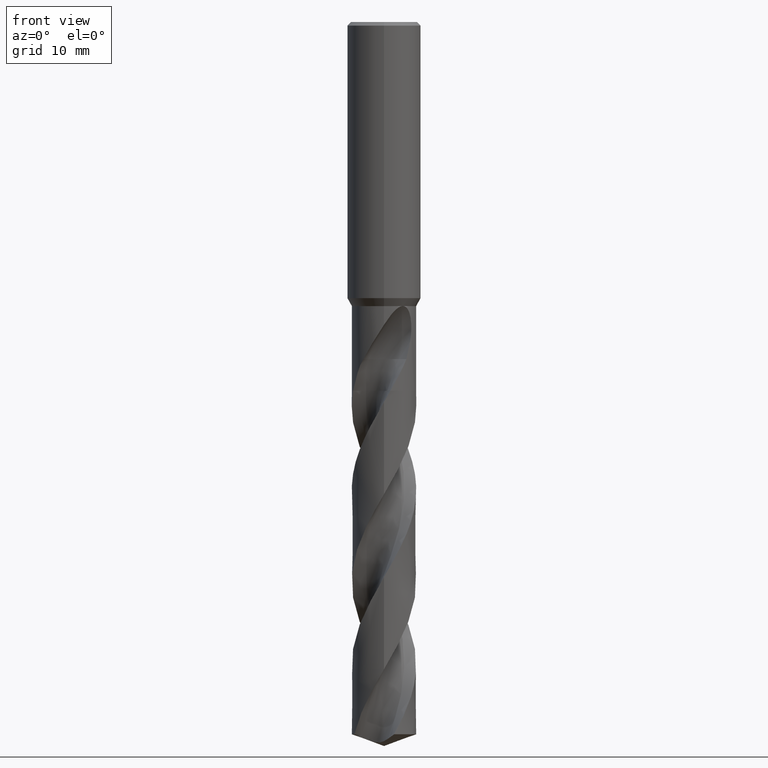
[diagram: clean part render]
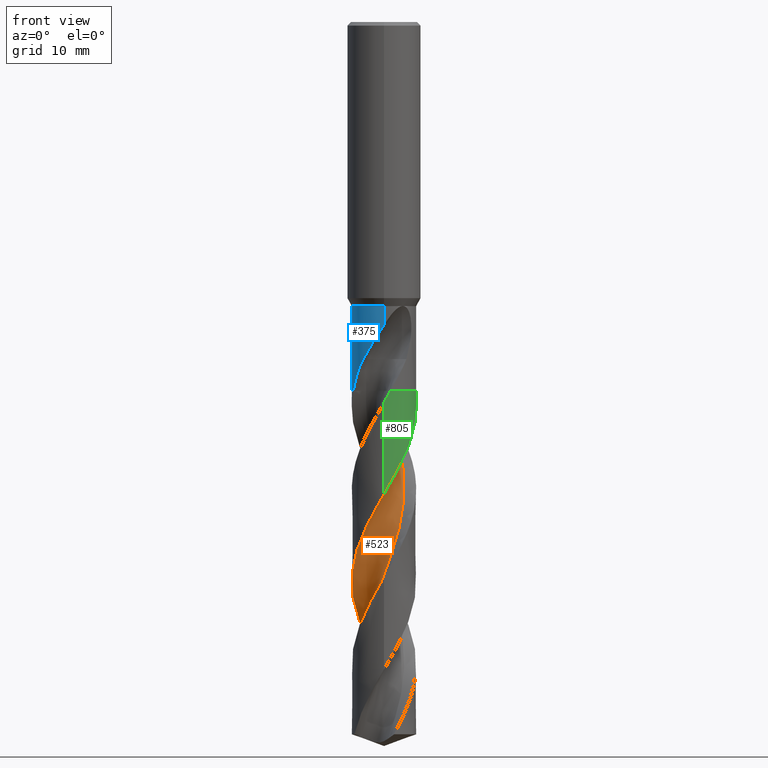
[diagram: same view with three faces highlighted in distinct colors, each labeled with its STEP entity id]
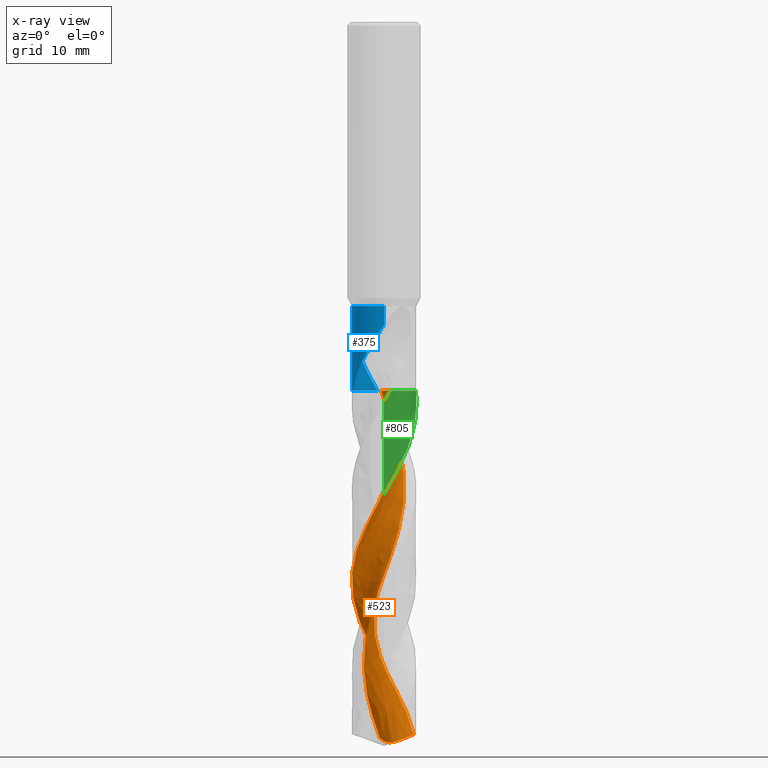
[diagram: x-ray of the same camera — body ghosted, the three highlighted faces saturated]
A machine part, front view with three faces highlighted in distinct colors.
The next image is the same camera in x-ray (body ghosted, the three faces saturated) — at least one of them is partly hidden behind the body in this view.
Their STEP definitions:

[orange] entity #523 — the highlighted face is a freeform B-spline surface patch.
#319=VERTEX_POINT('',#876);
#329=VERTEX_POINT('',#886);
#409=VERTEX_POINT('',#977);
#417=EDGE_CURVE('',#409,#329,#985,.T.);
#459=EDGE_CURVE('',#329,#601,#1031,.T.);
#523=ADVANCED_FACE('',(#1100),#1101,.F.);
#567=EDGE_CURVE('',#319,#751,#1149,.T.);
#573=EDGE_CURVE('',#751,#409,#1155,.T.);
#601=VERTEX_POINT('',#1184);
#613=EDGE_CURVE('',#601,#779,#1197,.T.);
#751=VERTEX_POINT('',#1347);
#753=EDGE_CURVE('',#833,#319,#1349,.T.);
#779=VERTEX_POINT('',#1378);
#803=EDGE_CURVE('',#779,#833,#1405,.T.);
#833=VERTEX_POINT('',#1438);
#876=CARTESIAN_POINT('',(1.17994053403779E-013,2.18317365283866,-117.205389774132));
#886=CARTESIAN_POINT('',(-8.7608214498443E-014,-5.24993013062096,-76.9698804554694));
#977=CARTESIAN_POINT('',(-1.80850322413635E-014,5.2499810812337,-105.496698643418));
#985=B_SPLINE_CURVE_WITH_KNOTS('',3,(#3870,#3871,#3872,#3873,#3874,#3875,#3876,#3877,#3878,#3879,#3880,#3881,#3882,#3883,#3884,#3885,#3886,#3887,#3888,#3889,#3890,#3891,#3892,#3893,#3894,#3895,#3896,#3897,#3898,#3899,#3900,#3901,#3902,#3903,#3904,#3905,#3906,#3907,#3908,#3909,#3910,#3911,#3912,#3913,#3914,#3915,#3916,#3917,#3918,#3919,#3920,#3921,#3922,#3923,#3924,#3925,#3926,#3927,#3928,#3929,#3930,#3931,#3932,#3933,#3934,#3935),.UNSPECIFIED.,.F.,.F.,(4,2,2,2,2,2,2,2,2,2,2,2,2,2,2,2,2,2,2,2,2,2,2,2,2,2,2,2,2,2,2,2,4),(0.0,0.133614271243593,6.94704760138863,7.01043588537867,10.1596414727058,12.490022330375,15.8006023318277,16.519895736233,19.9965355079858,22.0001874778891,24.033737341843,26.1665633658412,28.9978675768433,31.2691019611189,33.3049810548338,36.1596708130561,38.7355791666894,39.505474085661,42.7278211872303,44.996081368308,47.2824114084155,49.551091504457,51.7802550309377,52.2730551789309,53.5900041872632,56.4477907050433,58.0965987010634,58.9685799791828,60.494580462624,61.6407797789391,63.3605798387657,63.7890318596523,65.0699307208908),.UNSPECIFIED.);
#1031=B_SPLINE_CURVE_WITH_KNOTS('',3,(#4071,#4072,#4073,#4074,#4075,#4076,#4077,#4078,#4079,#4080,#4081,#4082,#4083,#4084,#4085,#4086,#4087,#4088,#4089,#4090,#4091,#4092,#4093,#4094,#4095,#4096,#4097,#4098,#4099,#4100,#4101,#4102,#4103,#4104,#4105,#4106,#4107,#4108,#4109,#4110,#4111,#4112,#4113,#4114,#4115,#4116,#4117,#4118,#4119,#4120,#4121,#4122,#4123,#4124,#4125,#4126,#4127,#4128,#4129,#4130,#4131,#4132,#4133,#4134,#4135,#4136),.UNSPECIFIED.,.F.,.F.,(4,2,2,2,2,2,2,2,2,2,2,2,2,2,2,2,2,2,2,2,2,2,2,2,2,2,2,2,2,2,2,2,4),(0.0,0.133614271243593,6.94704760138863,7.01043588537867,10.1596414727058,12.490022330375,15.8006023318277,16.519895736233,19.9965355079858,22.0001874778891,24.033737341843,26.1665633658412,28.9978675768433,31.2691019611189,33.3049810548338,36.1596708130561,38.7355791666894,39.505474085661,42.7278211872303,44.996081368308,47.2824114084155,49.551091504457,51.7802550309377,52.2730551789309,53.5900041872632,56.4477907050433,58.0965987010634,58.9685799791828,60.494580462624,61.6407797789391,63.3605798387657,63.7890318596523,65.0699307208908),.UNSPECIFIED.);
#1100=FACE_OUTER_BOUND('',#4572,.T.);
#1101=B_SPLINE_SURFACE_WITH_KNOTS('',3,3,((#4573,#4574,#4575,#4576,#4577,#4578,#4579,#4580,#4581,#4582,#4583,#4584,#4585,#4586,#4587,#4588,#4589,#4590,#4591,#4592,#4593,#4594,#4595,#4596,#4597,#4598,#4599,#4600,#4601,#4602,#4603,#4604,#4605,#4606,#4607,#4608,#4609,#4610,#4611,#4612,#4613,#4614,#4615,#4616,#4617,#4618,#4619,#4620,#4621,#4622,#4623,#4624,#4625,#4626,#4627,#4628,#4629,#4630),(#4631,#4632,#4633,#4634,#4635,#4636,#4637,#4638,#4639,#4640,#4641,#4642,#4643,#4644,#4645,#4646,#4647,#4648,#4649,#4650,#4651,#4652,#4653,#4654,#4655,#4656,#4657,#4658,#4659,#4660,#4661,#4662,#4663,#4664,#4665,#4666,#4667,#4668,#4669,#4670,#4671,#4672,#4673,#4674,#4675,#4676,#4677,#4678,#4679,#4680,#4681,#4682,#4683,#4684,#4685,#4686,#4687,#4688),(#4689,#4690,#4691,#4692,#4693,#4694,#4695,#4696,#4697,#4698,#4699,#4700,#4701,#4702,#4703,#4704,#4705,#4706,#4707,#4708,#4709,#4710,#4711,#4712,#4713,#4714,#4715,#4716,#4717,#4718,#4719,#4720,#4721,#4722,#4723,#4724,#4725,#4726,#4727,#4728,#4729,#4730,#4731,#4732,#4733,#4734,#4735,#4736,#4737,#4738,#4739,#4740,#4741,#4742,#4743,#4744,#4745,#4746),(#4747,#4748,#4749,#4750,#4751,#4752,#4753,#4754,#4755,#4756,#4757,#4758,#4759,#4760,#4761,#4762,#4763,#4764,#4765,#4766,#4767,#4768,#4769,#4770,#4771,#4772,#4773,#4774,#4775,#4776,#4777,#4778,#4779,#4780,#4781,#4782,#4783,#4784,#4785,#4786,#4787,#4788,#4789,#4790,#4791,#4792,#4793,#4794,#4795,#4796,#4797,#4798,#4799,#4800,#4801,#4802,#4803,#4804),(#4805,#4806,#4807,#4808,#4809,#4810,#4811,#4812,#4813,#4814,#4815,#4816,#4817,#4818,#4819,#4820,#4821,#4822,#4823,#4824,#4825,#4826,#4827,#4828,#4829,#4830,#4831,#4832,#4833,#4834,#4835,#4836,#4837,#4838,#4839,#4840,#4841,#4842,#4843,#4844,#4845,#4846,#4847,#4848,#4849,#4850,#4851,#4852,#4853,#4854,#4855,#4856,#4857,#4858,#4859,#4860,#4861,#4862),(#4863,#4864,#4865,#4866,#4867,#4868,#4869,#4870,#4871,#4872,#4873,#4874,#4875,#4876,#4877,#4878,#4879,#4880,#4881,#4882,#4883,#4884,#4885,#4886,#4887,#4888,#4889,#4890,#4891,#4892,#4893,#4894,#4895,#4896,#4897,#4898,#4899,#4900,#4901,#4902,#4903,#4904,#4905,#4906,#4907,#4908,#4909,#4910,#4911,#4912,#4913,#4914,#4915,#4916,#4917,#4918,#4919,#4920),(#4921,#4922,#4923,#4924,#4925,#4926,#4927,#4928,#4929,#4930,#4931,#4932,#4933,#4934,#4935,#4936,#4937,#4938,#4939,#4940,#4941,#4942,#4943,#4944,#4945,#4946,#4947,#4948,#4949,#4950,#4951,#4952,#4953,#4954,#4955,#4956,#4957,#4958,#4959,#4960,#4961,#4962,#4963,#4964,#4965,#4966,#4967,#4968,#4969,#4970,#4971,#4972,#4973,#4974,#4975,#4976,#4977,#4978),(#4979,#4980,#4981,#4982,#4983,#4984,#4985,#4986,#4987,#4988,#4989,#4990,#4991,#4992,#4993,#4994,#4995,#4996,#4997,#4998,#4999,#5000,#5001,#5002,#5003,#5004,#5005,#5006,#5007,#5008,#5009,#5010,#5011,#5012,#5013,#5014,#5015,#5016,#5017,#5018,#5019,#5020,#5021,#5022,#5023,#5024,#5025,#5026,#5027,#5028,#5029,#5030,#5031,#5032,#5033,#5034,#5035,#5036),(#5037,#5038,#5039,#5040,#5041,#5042,#5043,#5044,#5045,#5046,#5047,#5048,#5049,#5050,#5051,#5052,#5053,#5054,#5055,#5056,#5057,#5058,#5059,#5060,#5061,#5062,#5063,#5064,#5065,#5066,#5067,#5068,#5069,#5070,#5071,#5072,#5073,#5074,#5075,#5076,#5077,#5078,#5079,#5080,#5081,#5082,#5083,#5084,#5085,#5086,#5087,#5088,#5089,#5090,#5091,#5092,#5093,#5094),(#5095,#5096,#5097,#5098,#5099,#5100,#5101,#5102,#5103,#5104,#5105,#5106,#5107,#5108,#5109,#5110,#5111,#5112,#5113,#5114,#5115,#5116,#5117,#5118,#5119,#5120,#5121,#5122,#5123,#5124,#5125,#5126,#5127,#5128,#5129,#5130,#5131,#5132,#5133,#5134,#5135,#5136,#5137,#5138,#5139,#5140,#5141,#5142,#5143,#5144,#5145,#5146,#5147,#5148,#5149,#5150,#5151,#5152),(#5153,#5154,#5155,#5156,#5157,#5158,#5159,#5160,#5161,#5162,#5163,#5164,#5165,#5166,#5167,#5168,#5169,#5170,#5171,#5172,#5173,#5174,#5175,#5176,#5177,#5178,#5179,#5180,#5181,#5182,#5183,#5184,#5185,#5186,#5187,#5188,#5189,#5190,#5191,#5192,#5193,#5194,#5195,#5196,#5197,#5198,#5199,#5200,#5201,#5202,#5203,#5204,#5205,#5206,#5207,#5208,#5209,#5210)),.UNSPECIFIED.,.F.,.F.,.F.,(4,1,1,1,1,1,1,1,4),(4,1,2,2,2,2,2,2,2,1,2,1,2,1,2,1,2,1,2,1,2,1,2,1,2,1,2,1,2,1,2,2,2,2,4),(-2.39901857237366E-016,0.392700971525963,0.785401943051926,1.17810291457789,1.57080388610385,1.96350485762981,2.35620582915578,2.74890680068174,3.1416077722077),(0.0,1.26689958449814,2.53379916899629,3.80069875349443,5.06759833799258,7.60139750698886,10.1351966759852,12.6689958449814,15.2027950139777,17.736594182974,20.2703933519703,22.8041925209666,25.3379916899629,27.8717908589592,30.4055900279555,32.9393891969517,35.473188365948,38.0069875349443,40.5407867039406,43.0745858729369,45.6083850419332,48.1421842109295,50.6759833799258,53.2097825489221,55.7435817179183,58.2773808869146,60.8111800559109,63.3449792249072,65.8787783939035,68.4125775628998,70.9463767318961,73.4801759008924,76.0139750698886,78.5477742388849,81.0815734078812),.UNSPECIFIED.);
#1149=B_SPLINE_CURVE_WITH_KNOTS('',3,(#6051,#6052,#6053,#6054,#6055,#6056,#6057,#6058,#6059,#6060,#6061,#6062,#6063,#6064,#6065,#6066,#6067,#6068,#6069,#6070),.UNSPECIFIED.,.F.,.F.,(4,2,2,2,2,2,2,2,2,4),(0.0,1.6563758979472,2.41281179748596,3.64534693009154,4.74105224299237,5.98690700502411,7.34001715662408,8.86906072043179,10.5716671677493,12.3703171218161),.UNSPECIFIED.);
#1155=B_SPLINE_CURVE_WITH_KNOTS('',3,(#6081,#6082,#6083,#6084,#6085,#6086,#6087,#6088,#6089,#6090,#6091,#6092,#6093,#6094,#6095,#6096,#6097,#6098,#6099,#6100,#6101,#6102,#6103,#6104,#6105,#6106,#6107,#6108,#6109,#6110,#6111,#6112,#6113,#6114,#6115,#6116,#6117,#6118,#6119,#6120,#6121,#6122,#6123,#6124,#6125,#6126,#6127,#6128,#6129,#6130,#6131,#6132,#6133,#6134,#6135,#6136,#6137,#6138,#6139,#6140,#6141,#6142,#6143,#6144,#6145,#6146),.UNSPECIFIED.,.F.,.F.,(4,2,2,2,2,2,2,2,2,2,2,2,2,2,2,2,2,2,2,2,2,2,2,2,2,2,2,2,2,2,2,2,4),(0.0,0.133614271243593,6.94704760138863,7.01043588537867,10.1596414727058,12.490022330375,15.8006023318277,16.519895736233,19.9965355079858,22.0001874778891,24.033737341843,26.1665633658412,28.9978675768433,31.2691019611189,33.3049810548338,36.1596708130561,38.7355791666894,39.505474085661,42.7278211872303,44.996081368308,47.2824114084155,49.551091504457,51.7802550309377,52.2730551789309,53.5900041872632,56.4477907050433,58.0965987010634,58.9685799791828,60.494580462624,61.6407797789391,63.3605798387657,63.7890318596523,65.0699307208908),.UNSPECIFIED.);
#1184=CARTESIAN_POINT('',(5.03655410229585,1.48140909922889,-60.1050000000001));
#1197=B_SPLINE_CURVE_WITH_KNOTS('',3,(#6282,#6283,#6284,#6285,#6286,#6287,#6288,#6289,#6290,#6291,#6292,#6293,#6294,#6295,#6296,#6297,#6298,#6299,#6300,#6301),.UNSPECIFIED.,.F.,.F.,(4,2,2,2,2,2,2,2,2,4),(-11.0253687223708,-10.2959732825516,-9.56642489537174,-8.19845864466164,-6.83066699805442,-5.46367839300431,-4.0976526563024,-2.73218158787659,-1.36651743749647,-0.0),.UNSPECIFIED.);
#1347=CARTESIAN_POINT('',(4.82547408562634,2.0681633999635,-116.089156270102));
#1349=B_SPLINE_CURVE_WITH_KNOTS('',3,(#7739,#7740,#7741,#7742,#7743,#7744,#7745,#7746,#7747,#7748,#7749,#7750,#7751,#7752,#7753,#7754,#7755,#7756,#7757,#7758),.UNSPECIFIED.,.F.,.F.,(4,2,2,2,2,2,2,2,2,4),(0.0,1.6563758979472,2.41281179748596,3.64534693009154,4.74105224299237,5.98690700502411,7.34001715662408,8.86906072043179,10.5716671677493,12.3703171218161),.UNSPECIFIED.);
#1378=CARTESIAN_POINT('',(-0.521625326031044,3.25719927706871,-60.1050000000003));
#1405=B_SPLINE_CURVE_WITH_KNOTS('',3,(#9089,#9090,#9091,#9092,#9093,#9094,#9095,#9096,#9097,#9098,#9099,#9100,#9101,#9102,#9103,#9104,#9105,#9106,#9107,#9108,#9109,#9110,#9111,#9112,#9113,#9114,#9115,#9116,#9117,#9118,#9119,#9120,#9121,#9122,#9123,#9124,#9125,#9126,#9127,#9128,#9129,#9130,#9131,#9132,#9133,#9134,#9135,#9136,#9137,#9138,#9139,#9140,#9141,#9142,#9143,#9144,#9145,#9146),.UNSPECIFIED.,.F.,.F.,(4,1,2,2,2,2,2,2,2,1,2,1,2,1,2,1,2,1,2,1,2,1,2,1,2,1,2,1,2,1,2,2,2,2,4),(0.0,1.26689958449814,2.53379916899629,3.80069875349443,5.06759833799258,7.60139750698886,10.1351966759852,12.6689958449814,15.2027950139777,17.736594182974,20.2703933519703,22.8041925209666,25.3379916899629,27.8717908589592,30.4055900279555,32.9393891969517,35.473188365948,38.0069875349443,40.5407867039406,43.0745858729369,45.6083850419332,48.1421842109295,50.6759833799258,53.2097825489221,55.7435817179183,58.2773808869146,60.8111800559109,63.3449792249072,65.8787783939035,68.4125775628998,70.9463767318961,73.4801759008924,76.0139750698886,78.5477742388849,81.0815734078812),.UNSPECIFIED.);
#1438=CARTESIAN_POINT('',(-0.659491676516129,3.24349319442052,-116.79530925201));
#3870=CARTESIAN_POINT('',(4.82547408562634,2.06816339996351,-116.089156270102));
#3871=CARTESIAN_POINT('',(4.81672880810719,2.08856785542941,-116.050545134196));
#3872=CARTESIAN_POINT('',(4.80788304714311,2.10885056637991,-116.01201128608));
#3873=CARTESIAN_POINT('',(4.34038930968419,3.16254255188986,-114.006281714585));
#3874=CARTESIAN_POINT('',(3.55927841373222,4.02145873542991,-112.115938550363));
#3875=CARTESIAN_POINT('',(2.5647459778336,4.58089259661252,-110.132025863508));
#3876=CARTESIAN_POINT('',(2.55557706977339,4.58601402056886,-110.113760794929));
#3877=CARTESIAN_POINT('',(2.08901347593829,4.84478213271612,-109.186222859809));
#3878=CARTESIAN_POINT('',(1.59541208698591,5.02924375715432,-108.292113899585));
#3879=CARTESIAN_POINT('',(0.700433683521715,5.21756677142347,-106.714626567306));
#3880=CARTESIAN_POINT('',(0.313130474965968,5.2549280970428,-106.039015523183));
#3881=CARTESIAN_POINT('',(-0.624303635318326,5.24168544397347,-104.415305938395));
#3882=CARTESIAN_POINT('',(-1.16900680082248,5.1475160535679,-103.48029256453));
#3883=CARTESIAN_POINT('',(-1.80159876371112,4.93261634358924,-102.320193426858));
#3884=CARTESIAN_POINT('',(-1.91291237519538,4.89052279820614,-102.112707919592));
#3885=CARTESIAN_POINT('',(-2.55457278295824,4.62258846110119,-100.904810496016));
#3886=CARTESIAN_POINT('',(-3.04626769029978,4.31456118774596,-99.9244411254125));
#3887=CARTESIAN_POINT('',(-3.72756792907227,3.71187343346443,-98.3496585653663));
#3888=CARTESIAN_POINT('',(-3.95527075265513,3.46829916922706,-97.7699129136412));
#3889=CARTESIAN_POINT('',(-4.36519367462794,2.93626785092689,-96.6092528526119));
#3890=CARTESIAN_POINT('',(-4.54534298744474,2.64888510338393,-96.0288707022005));
#3891=CARTESIAN_POINT('',(-4.85529246023249,2.02837655516908,-94.8316571185727));
#3892=CARTESIAN_POINT('',(-4.98096787153246,1.69623658922537,-94.2148289282266));
#3893=CARTESIAN_POINT('',(-5.19340456937745,0.900660681589272,-92.7887187401138));
#3894=CARTESIAN_POINT('',(-5.25315632914758,0.432680895269185,-91.9865622184438));
#3895=CARTESIAN_POINT('',(-5.24715008296452,-0.414164814396053,-90.5218973028514));
#3896=CARTESIAN_POINT('',(-5.20394387952001,-0.789616399089978,-89.8654473817606));
#3897=CARTESIAN_POINT('',(-5.04605321042244,-1.4878990201535,-88.6289096978025));
#3898=CARTESIAN_POINT('',(-4.939695394643,-1.80994067525408,-88.0486325535011));
#3899=CARTESIAN_POINT('',(-4.61152559753917,-2.55360638190026,-86.6448814593292));
#3900=CARTESIAN_POINT('',(-4.36218368240595,-2.95952935273348,-85.8201990180141));
#3901=CARTESIAN_POINT('',(-3.78968352155363,-3.65839198931739,-84.2616650366665));
#3902=CARTESIAN_POINT('',(-3.47927227498469,-3.95452234495538,-83.5304198698616));
#3903=CARTESIAN_POINT('',(-3.03536532827359,-4.28540074211324,-82.5685957979929));
#3904=CARTESIAN_POINT('',(-2.93065560442355,-4.35768399165965,-82.3467498162268));
#3905=CARTESIAN_POINT('',(-2.3727445839286,-4.71351298464384,-81.1977801155952));
#3906=CARTESIAN_POINT('',(-1.88093680672888,-4.93056213758689,-80.2868622324706));
#3907=CARTESIAN_POINT('',(-1.00016691601596,-5.1675374914969,-78.7095552198439));
#3908=CARTESIAN_POINT('',(-0.6270108339403,-5.2259909630064,-78.0534610912858));
#3909=CARTESIAN_POINT('',(0.1296869418435,-5.26208682499905,-76.7448667618339));
#3910=CARTESIAN_POINT('',(0.510164390730036,-5.23887578021573,-76.0938657317411));
#3911=CARTESIAN_POINT('',(1.25624249979142,-5.11133030484747,-74.7850810580879));
#3912=CARTESIAN_POINT('',(1.61970808566452,-5.00806374472442,-74.1287657801422));
#3913=CARTESIAN_POINT('',(2.31331473667188,-4.72734475222111,-72.836269400288));
#3914=CARTESIAN_POINT('',(2.64119214007327,-4.55226099449598,-72.2012393660398));
#3915=CARTESIAN_POINT('',(3.0155878748758,-4.29820917315373,-71.4190507995818));
#3916=CARTESIAN_POINT('',(3.08219543854334,-4.25069472780911,-71.2774409469124));
#3917=CARTESIAN_POINT('',(3.32232088400152,-4.07081102470516,-70.7569288464718));
#3918=CARTESIAN_POINT('',(3.48852203922933,-3.92933998837307,-70.3763896538749));
#3919=CARTESIAN_POINT('',(3.98748631797893,-3.44774179301493,-69.1745679852492));
#3920=CARTESIAN_POINT('',(4.28304011843856,-3.07302353455142,-68.3633436891242));
#3921=CARTESIAN_POINT('',(4.66356963616828,-2.4265260935414,-67.0678569341067));
#3922=CARTESIAN_POINT('',(4.78373168280908,-2.17998244533877,-66.5917501659626));
#3923=CARTESIAN_POINT('',(4.93712896783247,-1.79087903878913,-65.8672357827));
#3924=CARTESIAN_POINT('',(4.98463388977541,-1.65407296224662,-65.6169756592148));
#3925=CARTESIAN_POINT('',(5.09960808063075,-1.27270918951827,-64.9280339765911));
#3926=CARTESIAN_POINT('',(5.15513035515905,-1.0249473405412,-64.4894062486284));
#3927=CARTESIAN_POINT('',(5.22062464695251,-0.585578973979911,-63.7217627251551));
#3928=CARTESIAN_POINT('',(5.2384327536915,-0.395753153538572,-63.3930566173444));
#3929=CARTESIAN_POINT('',(5.25706743187215,0.0801909050287473,-62.5696818348328));
#3930=CARTESIAN_POINT('',(5.24488914233932,0.36616628184485,-62.0772691473094));
#3931=CARTESIAN_POINT('',(5.20079158876089,0.719928989680242,-61.4599665882146));
#3932=CARTESIAN_POINT('',(5.19057462350483,0.790215062951547,-61.3368563417957));
#3933=CARTESIAN_POINT('',(5.14420519640226,1.06938647472148,-60.845286088368));
#3934=CARTESIAN_POINT('',(5.09675067989332,1.27677419276907,-60.4738942748103));
#3935=CARTESIAN_POINT('',(5.03651195196867,1.48155238064644,-60.1047417004308));
#4071=CARTESIAN_POINT('',(4.82547408562634,2.06816339996351,-116.089156270102));
#4072=CARTESIAN_POINT('',(4.81672880810719,2.08856785542941,-116.050545134196));
#4073=CARTESIAN_POINT('',(4.80788304714311,2.10885056637991,-116.01201128608));
#4074=CARTESIAN_POINT('',(4.34038930968419,3.16254255188986,-114.006281714585));
#4075=CARTESIAN_POINT('',(3.55927841373222,4.02145873542991,-112.115938550363));
#4076=CARTESIAN_POINT('',(2.5647459778336,4.58089259661252,-110.132025863508));
#4077=CARTESIAN_POINT('',(2.55557706977339,4.58601402056886,-110.113760794929));
#4078=CARTESIAN_POINT('',(2.08901347593829,4.84478213271612,-109.186222859809));
#4079=CARTESIAN_POINT('',(1.59541208698591,5.02924375715432,-108.292113899585));
#4080=CARTESIAN_POINT('',(0.700433683521715,5.21756677142347,-106.714626567306));
#4081=CARTESIAN_POINT('',(0.313130474965968,5.2549280970428,-106.039015523183));
#4082=CARTESIAN_POINT('',(-0.624303635318326,5.24168544397347,-104.415305938395));
#4083=CARTESIAN_POINT('',(-1.16900680082248,5.1475160535679,-103.48029256453));
#4084=CARTESIAN_POINT('',(-1.80159876371112,4.93261634358924,-102.320193426858));
#4085=CARTESIAN_POINT('',(-1.91291237519538,4.89052279820614,-102.112707919592));
#4086=CARTESIAN_POINT('',(-2.55457278295824,4.62258846110119,-100.904810496016));
#4087=CARTESIAN_POINT('',(-3.04626769029978,4.31456118774596,-99.9244411254125));
#4088=CARTESIAN_POINT('',(-3.72756792907227,3.71187343346443,-98.3496585653663));
#4089=CARTESIAN_POINT('',(-3.95527075265513,3.46829916922706,-97.7699129136412));
#4090=CARTESIAN_POINT('',(-4.36519367462794,2.93626785092689,-96.6092528526119));
#4091=CARTESIAN_POINT('',(-4.54534298744474,2.64888510338393,-96.0288707022005));
#4092=CARTESIAN_POINT('',(-4.85529246023249,2.02837655516908,-94.8316571185727));
#4093=CARTESIAN_POINT('',(-4.98096787153246,1.69623658922537,-94.2148289282266));
#4094=CARTESIAN_POINT('',(-5.19340456937745,0.900660681589272,-92.7887187401138));
#4095=CARTESIAN_POINT('',(-5.25315632914758,0.432680895269185,-91.9865622184438));
#4096=CARTESIAN_POINT('',(-5.24715008296452,-0.414164814396053,-90.5218973028514));
#4097=CARTESIAN_POINT('',(-5.20394387952001,-0.789616399089978,-89.8654473817606));
#4098=CARTESIAN_POINT('',(-5.04605321042244,-1.4878990201535,-88.6289096978025));
#4099=CARTESIAN_POINT('',(-4.939695394643,-1.80994067525408,-88.0486325535011));
#4100=CARTESIAN_POINT('',(-4.61152559753917,-2.55360638190026,-86.6448814593292));
#4101=CARTESIAN_POINT('',(-4.36218368240595,-2.95952935273348,-85.8201990180141));
#4102=CARTESIAN_POINT('',(-3.78968352155363,-3.65839198931739,-84.2616650366665));
#4103=CARTESIAN_POINT('',(-3.47927227498469,-3.95452234495538,-83.5304198698616));
#4104=CARTESIAN_POINT('',(-3.03536532827359,-4.28540074211324,-82.5685957979929));
#4105=CARTESIAN_POINT('',(-2.93065560442355,-4.35768399165965,-82.3467498162268));
#4106=CARTESIAN_POINT('',(-2.3727445839286,-4.71351298464384,-81.1977801155952));
#4107=CARTESIAN_POINT('',(-1.88093680672888,-4.93056213758689,-80.2868622324706));
#4108=CARTESIAN_POINT('',(-1.00016691601596,-5.1675374914969,-78.7095552198439));
#4109=CARTESIAN_POINT('',(-0.6270108339403,-5.2259909630064,-78.0534610912858));
#4110=CARTESIAN_POINT('',(0.1296869418435,-5.26208682499905,-76.7448667618339));
#4111=CARTESIAN_POINT('',(0.510164390730036,-5.23887578021573,-76.0938657317411));
#4112=CARTESIAN_POINT('',(1.25624249979142,-5.11133030484747,-74.7850810580879));
#4113=CARTESIAN_POINT('',(1.61970808566452,-5.00806374472442,-74.1287657801422));
#4114=CARTESIAN_POINT('',(2.31331473667188,-4.72734475222111,-72.836269400288));
#4115=CARTESIAN_POINT('',(2.64119214007327,-4.55226099449598,-72.2012393660398));
#4116=CARTESIAN_POINT('',(3.0155878748758,-4.29820917315373,-71.4190507995818));
#4117=CARTESIAN_POINT('',(3.08219543854334,-4.25069472780911,-71.2774409469124));
#4118=CARTESIAN_POINT('',(3.32232088400152,-4.07081102470516,-70.7569288464718));
#4119=CARTESIAN_POINT('',(3.48852203922933,-3.92933998837307,-70.3763896538749));
#4120=CARTESIAN_POINT('',(3.98748631797893,-3.44774179301493,-69.1745679852492));
#4121=CARTESIAN_POINT('',(4.28304011843856,-3.07302353455142,-68.3633436891242));
#4122=CARTESIAN_POINT('',(4.66356963616828,-2.4265260935414,-67.0678569341067));
#4123=CARTESIAN_POINT('',(4.78373168280908,-2.17998244533877,-66.5917501659626));
#4124=CARTESIAN_POINT('',(4.93712896783247,-1.79087903878913,-65.8672357827));
#4125=CARTESIAN_POINT('',(4.98463388977541,-1.65407296224662,-65.6169756592148));
#4126=CARTESIAN_POINT('',(5.09960808063075,-1.27270918951827,-64.9280339765911));
#4127=CARTESIAN_POINT('',(5.15513035515905,-1.0249473405412,-64.4894062486284));
#4128=CARTESIAN_POINT('',(5.22062464695251,-0.585578973979911,-63.7217627251551));
#4129=CARTESIAN_POINT('',(5.2384327536915,-0.395753153538572,-63.3930566173444));
#4130=CARTESIAN_POINT('',(5.25706743187215,0.0801909050287473,-62.5696818348328));
#4131=CARTESIAN_POINT('',(5.24488914233932,0.36616628184485,-62.0772691473094));
#4132=CARTESIAN_POINT('',(5.20079158876089,0.719928989680242,-61.4599665882146));
#4133=CARTESIAN_POINT('',(5.19057462350483,0.790215062951547,-61.3368563417957));
#4134=CARTESIAN_POINT('',(5.14420519640226,1.06938647472148,-60.845286088368));
#4135=CARTESIAN_POINT('',(5.09675067989332,1.27677419276907,-60.4738942748103));
#4136=CARTESIAN_POINT('',(5.03651195196867,1.48155238064644,-60.1047417004308));
#4572=EDGE_LOOP('',(#9535,#9536,#9537,#9538,#9539,#9540,#9541));
#4573=CARTESIAN_POINT('',(2.47487373408221,7.5498737340822,-54.943));
#4574=CARTESIAN_POINT('',(2.74067540122128,7.53126569263044,-55.2709511641934));
#4575=CARTESIAN_POINT('',(3.27847393910394,7.4362749030133,-55.9312040628472));
#4576=CARTESIAN_POINT('',(3.80828242830574,7.18536247439797,-56.5926651493052));
#4577=CARTESIAN_POINT('',(4.31166221501075,6.8400188953889,-57.2450442318675));
#4578=CARTESIAN_POINT('',(4.55283441351379,6.66466310684019,-57.5708380318178));
#4579=CARTESIAN_POINT('',(5.02215939214465,6.31572730938144,-58.227241272418));
#4580=CARTESIAN_POINT('',(5.24796715225149,6.13091550673828,-58.5558768191582));
#4581=CARTESIAN_POINT('',(5.8958515894681,5.54779407113512,-59.5439047737949));
#4582=CARTESIAN_POINT('',(6.28503601397462,5.10994937382809,-60.2020743006675));
#4583=CARTESIAN_POINT('',(6.95084086685268,4.14680835396529,-61.5137646101149));
#4584=CARTESIAN_POINT('',(7.23354548507488,3.63189755335462,-62.1701002866414));
#4585=CARTESIAN_POINT('',(7.68114426046699,2.55274363668706,-63.484966615317));
#4586=CARTESIAN_POINT('',(7.84734934454171,1.99013241419653,-64.1420700041349));
#4587=CARTESIAN_POINT('',(8.05124470081885,0.839510567218312,-65.4554070329267));
#4588=CARTESIAN_POINT('',(8.09198157848895,0.253613983627241,-66.1123638816735));
#4589=CARTESIAN_POINT('',(8.03973202008009,-0.915182865616261,-67.4263634910286));
#4590=CARTESIAN_POINT('',(7.86684347373052,-2.07536348443712,-68.7397605722228));
#4591=CARTESIAN_POINT('',(7.45040135948047,-3.17306534990742,-70.0543422943021));
#4592=CARTESIAN_POINT('',(6.9102656389939,-4.21147492364571,-71.36803725916));
#4593=CARTESIAN_POINT('',(6.2644388570851,-5.19112108806327,-72.6810691034291));
#4594=CARTESIAN_POINT('',(5.42472114185397,-6.01188296432254,-73.9955535330437));
#4595=CARTESIAN_POINT('',(4.49813382292744,-6.7270235057089,-75.3094271597062));
#4596=CARTESIAN_POINT('',(3.50032638528097,-7.34433639097157,-76.6226103973153));
#4597=CARTESIAN_POINT('',(2.39335939122062,-7.73579715971779,-77.9371149831259));
#4598=CARTESIAN_POINT('',(1.25196285703316,-7.99489459276779,-79.2509253788425));
#4599=CARTESIAN_POINT('',(0.087080941187614,-8.13532559430816,-80.5640624692149));
#4600=CARTESIAN_POINT('',(-1.08188262713344,-8.02497665981207,-81.8785640542132));
#4601=CARTESIAN_POINT('',(-2.22641327392147,-7.78004071909244,-83.1923917294259));
#4602=CARTESIAN_POINT('',(-3.3423369749801,-7.4175558720865,-84.5055402422592));
#4603=CARTESIAN_POINT('',(-4.35648786987,-6.82582802371087,-85.8200410099046));
#4604=CARTESIAN_POINT('',(-5.29187640257851,-6.12227621842399,-87.1338630223454));
#4605=CARTESIAN_POINT('',(-6.15188015859361,-5.324105727716,-88.4470087640383));
#4606=CARTESIAN_POINT('',(-6.82313746821776,-4.36074201699909,-89.7615108482968));
#4607=CARTESIAN_POINT('',(-7.37589962072359,-3.32904239656911,-91.0753347643915));
#4608=CARTESIAN_POINT('',(-7.8204705710182,-2.24320197389332,-92.3884806803136));
#4609=CARTESIAN_POINT('',(-8.02432245493488,-1.0868677264758,-93.7029804726063));
#4610=CARTESIAN_POINT('',(-8.09193029855459,0.0816309434984565,-95.0168014566142));
#4611=CARTESIAN_POINT('',(-8.03861794960629,1.25374622315489,-96.3299479350212));
#4612=CARTESIAN_POINT('',(-7.73727481118925,2.38857555935004,-97.6444596763975));
#4613=CARTESIAN_POINT('',(-7.30720709735664,3.47713463363787,-98.958299247212));
#4614=CARTESIAN_POINT('',(-6.76590263221676,4.51811083437719,-100.27144336305));
#4615=CARTESIAN_POINT('',(-6.01527717440933,5.42098618862298,-101.585909220375));
#4616=CARTESIAN_POINT('',(-5.16735196027052,6.22781785224279,-102.899686443206));
#4617=CARTESIAN_POINT('',(-4.23846937093201,6.94475017646595,-104.212849359038));
#4618=CARTESIAN_POINT('',(-3.17756781733875,7.44807593616733,-105.527453282786));
#4619=CARTESIAN_POINT('',(-2.06872731520349,7.82298571368209,-106.841388193531));
#4620=CARTESIAN_POINT('',(-0.924609916495666,8.08232375361445,-108.154460911297));
#4621=CARTESIAN_POINT('',(0.249038019723216,8.0939427710101,-109.468758764856));
#4622=CARTESIAN_POINT('',(1.41240490136718,7.97027192174528,-110.782462316321));
#4623=CARTESIAN_POINT('',(1.98654007688152,7.84750068179456,-111.439249191059));
#4624=CARTESIAN_POINT('',(3.09542065858889,7.47873417910701,-112.753284321945));
#4625=CARTESIAN_POINT('',(3.62972164872586,7.236186842516,-113.410221278944));
#4626=CARTESIAN_POINT('',(4.63342508682299,6.63791569356918,-114.723812558213));
#4627=CARTESIAN_POINT('',(5.10315661713469,6.2854080366788,-115.380850861182));
#4628=CARTESIAN_POINT('',(5.95198829827502,5.48063670098606,-116.694395906404));
#4629=CARTESIAN_POINT('',(6.33403949519057,5.03777638623645,-117.350247268819));
#4630=CARTESIAN_POINT('',(6.66782799184243,4.56223590056966,-118.006928278191));
#4631=CARTESIAN_POINT('',(2.79882175776176,7.22589821207784,-54.943));
#4632=CARTESIAN_POINT('',(3.06416400467649,7.20683078722507,-55.2709390161746));
#4633=CARTESIAN_POINT('',(3.59375503996256,7.10336882029756,-55.931666873012));
#4634=CARTESIAN_POINT('',(4.09863354458247,6.83028451835257,-56.5937021642767));
#4635=CARTESIAN_POINT('',(4.56671114198285,6.4587907927082,-57.2454300040338));
#4636=CARTESIAN_POINT('',(4.79162620105923,6.27331260634459,-57.5708615465658));
#4637=CARTESIAN_POINT('',(5.2320756937103,5.90815923200578,-58.2271999142662));
#4638=CARTESIAN_POINT('',(5.44340489991625,5.71623872714967,-58.5558585167499));
#4639=CARTESIAN_POINT('',(6.04769149322838,5.11438001647375,-59.5442531066217));
#4640=CARTESIAN_POINT('',(6.40566510817618,4.66666908553593,-60.2025988782738));
#4641=CARTESIAN_POINT('',(7.00499494161405,3.69061094974102,-61.5139937761841));
#4642=CARTESIAN_POINT('',(7.25461956640173,3.17303496314776,-62.1702489483836));
#4643=CARTESIAN_POINT('',(7.63601691483629,2.09561982480473,-63.4852598602088));
#4644=CARTESIAN_POINT('',(7.76948423047731,1.53742381774862,-64.142389960002));
#4645=CARTESIAN_POINT('',(7.90882965208387,0.402788915727437,-65.4556593909669));
#4646=CARTESIAN_POINT('',(7.9184133244217,-0.171710524808042,-66.1126224537393));
#4647=CARTESIAN_POINT('',(7.80608752307886,-1.31070385160841,-67.4266464548727));
#4648=CARTESIAN_POINT('',(7.57770387296008,-2.43523712383056,-68.7399841978378));
#4649=CARTESIAN_POINT('',(7.11435924086936,-3.48629725496349,-70.0546712759152));
#4650=CARTESIAN_POINT('',(6.53200215735676,-4.47215672591432,-71.3683482906238));
#4651=CARTESIAN_POINT('',(5.85071150286494,-5.39593593464274,-72.6812700817773));
#4652=CARTESIAN_POINT('',(4.98808433752503,-6.1546572179398,-73.9958462864638));
#4653=CARTESIAN_POINT('',(4.04531588209252,-6.80443042513509,-75.3097268260941));
#4654=CARTESIAN_POINT('',(3.03883064263576,-7.35617799438659,-76.6228210140478));
#4655=CARTESIAN_POINT('',(1.93716745690672,-7.68171061726958,-77.9374202016001));
#4656=CARTESIAN_POINT('',(0.808581550471128,-7.87468983428363,-79.2512287119619));
#4657=CARTESIAN_POINT('',(-0.336599057734568,-7.95198575331387,-80.564270358397));
#4658=CARTESIAN_POINT('',(-1.47302643400015,-7.78405562889195,-81.8788660974147));
#4659=CARTESIAN_POINT('',(-2.57812874330944,-7.4845201653911,-83.1926943225226));
#4660=CARTESIAN_POINT('',(-3.64962604169899,-7.07303909011831,-84.5057489523595));
#4661=CARTESIAN_POINT('',(-4.61004123535066,-6.44275218324007,-85.8203437693363));
#4662=CARTESIAN_POINT('',(-5.48669623163911,-5.70624571073793,-87.1341655461077));
#4663=CARTESIAN_POINT('',(-6.28578833151248,-4.88230600640386,-88.4472170148351));
#4664=CARTESIAN_POINT('',(-6.89207595408138,-3.90655706516254,-89.7618133499831));
#4665=CARTESIAN_POINT('',(-7.37768983871566,-2.86965910900599,-91.0756372660778));
#4666=CARTESIAN_POINT('',(-7.75615839543945,-1.78605594079434,-92.3886889266484));
#4667=CARTESIAN_POINT('',(-7.89585580313187,-0.645808983804668,-93.7032827042744));
#4668=CARTESIAN_POINT('',(-7.90035571395005,0.499165868290795,-95.0171032169436));
#4669=CARTESIAN_POINT('',(-7.78801301522843,1.64145165396215,-96.3301556338088));
#4670=CARTESIAN_POINT('',(-7.43523206780641,2.73470650329737,-97.6447628936587));
#4671=CARTESIAN_POINT('',(-6.95780264952177,3.77538403563268,-98.9586046640539));
#4672=CARTESIAN_POINT('',(-6.37548604257936,4.7644707733713,-100.271654198126));
#4673=CARTESIAN_POINT('',(-5.5956792522144,5.60799854936869,-101.586209256888));
#4674=CARTESIAN_POINT('',(-4.72492368709494,6.35148270264798,-102.899980195203));
#4675=CARTESIAN_POINT('',(-3.78065112812878,7.00409670153521,-104.213051506301));
#4676=CARTESIAN_POINT('',(-2.71822894437309,7.44126505183532,-105.527763666416));
#4677=CARTESIAN_POINT('',(-1.61533103160866,7.74902548132731,-106.841713660001));
#4678=CARTESIAN_POINT('',(-0.484328268806744,7.94353489269859,-108.154680887885));
#4679=CARTESIAN_POINT('',(0.662955348647627,7.89469530113622,-109.469044986784));
#4680=CARTESIAN_POINT('',(1.7928973339752,7.71287657343891,-110.782733769636));
#4681=CARTESIAN_POINT('',(2.34744372846709,7.56332580732624,-111.439505198169));
#4682=CARTESIAN_POINT('',(3.41153875654532,7.14545370587319,-112.753564838668));
#4683=CARTESIAN_POINT('',(3.92107257407248,6.88105336544214,-113.410498840097));
#4684=CARTESIAN_POINT('',(4.87052121473816,6.24448168453694,-114.724058696786));
#4685=CARTESIAN_POINT('',(5.31125427849641,5.87586349393928,-115.381122299416));
#4686=CARTESIAN_POINT('',(6.09811334431629,5.04511569992625,-116.694710864912));
#4687=CARTESIAN_POINT('',(6.44886335141829,4.59309819412997,-117.350489252654));
#4688=CARTESIAN_POINT('',(6.75123389234619,4.11174078977618,-118.007196264211));
#4689=CARTESIAN_POINT('',(3.31774813584024,6.44926134261891,-54.943));
#4690=CARTESIAN_POINT('',(3.58198905130442,6.42945804191536,-55.270919033742));
#4691=CARTESIAN_POINT('',(4.09179989134565,6.31232113085145,-55.9324280472068));
#4692=CARTESIAN_POINT('',(4.5380123494938,6.0048154993989,-56.5954077202774));
#4693=CARTESIAN_POINT('',(4.92510109258025,5.59507148927457,-57.2460644735972));
#4694=CARTESIAN_POINT('',(5.11348340261348,5.39581769977339,-57.5709002229965));
#4695=CARTESIAN_POINT('',(5.48974496195157,5.00971868890434,-58.2271318911972));
#4696=CARTESIAN_POINT('',(5.66929626617859,4.80934140758477,-58.5558284207284));
#4697=CARTESIAN_POINT('',(6.1789544578389,4.18735321523276,-59.5448259906201));
#4698=CARTESIAN_POINT('',(6.47059613807095,3.73232525904252,-60.2034616710823));
#4699=CARTESIAN_POINT('',(6.93186725361742,2.75687315877274,-61.5143706484179));
#4700=CARTESIAN_POINT('',(7.11428601626099,2.24712267595469,-62.1704934630346));
#4701=CARTESIAN_POINT('',(7.36399975307795,1.19951015449104,-63.4857421393207));
#4702=CARTESIAN_POINT('',(7.43376108868865,0.663161310123181,-64.1429161608271));
#4703=CARTESIAN_POINT('',(7.45039131445714,-0.413837192168401,-65.4560744617728));
#4704=CARTESIAN_POINT('',(7.40221384603107,-0.953158664542155,-66.1130477209142));
#4705=CARTESIAN_POINT('',(7.18161271398481,-2.00866742876944,-67.4271118394669));
#4706=CARTESIAN_POINT('',(6.85643781732699,-3.03985260253245,-68.7403520148555));
#4707=CARTESIAN_POINT('',(6.31785560846762,-3.97899748588745,-70.055212293943));
#4708=CARTESIAN_POINT('',(5.67197082410879,-4.84298903696365,-71.3688598875077));
#4709=CARTESIAN_POINT('',(4.94198366132184,-5.64095509618125,-72.6816005875559));
#4710=CARTESIAN_POINT('',(4.05821847168481,-6.26651113538832,-73.9963277982787));
#4711=CARTESIAN_POINT('',(3.1090887620879,-6.77914249587156,-75.3102196536458));
#4712=CARTESIAN_POINT('',(2.1113245366147,-7.19633623352456,-76.6231674161414));
#4713=CARTESIAN_POINT('',(1.04648390524599,-7.39214945583926,-77.9379222032656));
#4714=CARTESIAN_POINT('',(-0.0301933340552487,-7.45801437301969,-79.2517275812258));
#4715=CARTESIAN_POINT('',(-1.11087305894945,-7.41690124423407,-80.5646122483332));
#4716=CARTESIAN_POINT('',(-2.15934389933207,-7.14677139986914,-81.8793629181146));
#4717=CARTESIAN_POINT('',(-3.1638938335282,-6.75373910560381,-83.1931919333739));
#4718=CARTESIAN_POINT('',(-4.12707303806455,-6.26195298453291,-84.5060922202926));
#4719=CARTESIAN_POINT('',(-4.9647059663848,-5.57593288203177,-85.8208417536018));
#4720=CARTESIAN_POINT('',(-5.71081370822787,-4.79688714455742,-87.1346630573262));
#4721=CARTESIAN_POINT('',(-6.37786069160615,-3.9456422280995,-88.4475595180321));
#4722=CARTESIAN_POINT('',(-6.84931114553138,-2.97096409105973,-89.7623109146625));
#4723=CARTESIAN_POINT('',(-7.19858956936258,-1.95037404167841,-91.0761347366575));
#4724=CARTESIAN_POINT('',(-7.44577085875265,-0.897531009808142,-92.38903150837));
#4725=CARTESIAN_POINT('',(-7.46358365473272,0.185036312656496,-93.7037796573393));
#4726=CARTESIAN_POINT('',(-7.35124881638621,1.2578776902828,-95.0175996357197));
#4727=CARTESIAN_POINT('',(-7.13273240302752,2.31704282072669,-96.3304971200376));
#4728=CARTESIAN_POINT('',(-6.69363014620232,3.30671129255667,-97.6452616901464));
#4729=CARTESIAN_POINT('',(-6.14053796280113,4.23281187986881,-98.9591068742201));
#4730=CARTESIAN_POINT('',(-5.49684894900687,5.10183250435605,-100.272000976146));
#4731=CARTESIAN_POINT('',(-4.68229209709082,5.81508574636948,-101.586702777331));
#4732=CARTESIAN_POINT('',(-3.7910764389754,6.42282279815685,-102.900463265227));
#4733=CARTESIAN_POINT('',(-2.84160750829876,6.94070715114184,-104.213383868383));
#4734=CARTESIAN_POINT('',(-1.80245303344041,7.24498389811107,-105.528274414405));
#4735=CARTESIAN_POINT('',(-0.738140643934518,7.42083698874358,-106.842248680198));
#4736=CARTESIAN_POINT('',(0.340858364453936,7.49093173028636,-108.155042852107));
#4737=CARTESIAN_POINT('',(1.41138226570521,7.33168443179422,-109.469515649057));
#4738=CARTESIAN_POINT('',(2.45136527393545,7.04688635591177,-110.783180303129));
#4739=CARTESIAN_POINT('',(2.95609308723314,6.85157753725623,-111.43992606496));
#4740=CARTESIAN_POINT('',(3.91110838772359,6.35332447323437,-112.754026380348));
#4741=CARTESIAN_POINT('',(4.36242813402317,6.05507636194009,-113.410955020278));
#4742=CARTESIAN_POINT('',(5.18815930612134,5.36349484927899,-114.724463833578));
#4743=CARTESIAN_POINT('',(5.56450109405311,4.97419403960309,-115.381568851875));
#4744=CARTESIAN_POINT('',(6.21711110906532,4.11614846344436,-116.695228745815));
#4745=CARTESIAN_POINT('',(6.50163039256967,3.65826783538705,-117.350887201446));
#4746=CARTESIAN_POINT('',(6.73886513059588,3.17777278585981,-118.007637014697));
#4747=CARTESIAN_POINT('',(3.59111522779591,5.0750036311512,-54.9429999999998));
#4748=CARTESIAN_POINT('',(3.85340734520924,5.05481267645154,-55.2709065602336));
#4749=CARTESIAN_POINT('',(4.32795406430907,4.9300781558381,-55.9329032161285));
#4750=CARTESIAN_POINT('',(4.67310112112639,4.60854252485235,-56.5964724272761));
#4751=CARTESIAN_POINT('',(4.92598556818854,4.19227954136507,-57.2464605465591));
#4752=CARTESIAN_POINT('',(5.05582799268086,3.99490549138226,-57.5709243650839));
#4753=CARTESIAN_POINT('',(5.33110546900713,3.61662448845819,-58.2270894292324));
#4754=CARTESIAN_POINT('',(5.46176008240297,3.42276886358798,-58.5558096308023));
#4755=CARTESIAN_POINT('',(5.82871432448591,2.82720408505613,-59.5451836225869));
#4756=CARTESIAN_POINT('',(6.02422414357359,2.40011275492468,-60.2040002673285));
#4757=CARTESIAN_POINT('',(6.29450280785063,1.50475402257423,-61.5146059231397));
#4758=CARTESIAN_POINT('',(6.3882709582564,1.04442884747871,-62.1706460887106));
#4759=CARTESIAN_POINT('',(6.47258834273244,0.113713932387175,-63.4860432205523));
#4760=CARTESIAN_POINT('',(6.4665988315996,-0.355785674881694,-64.143244670072));
#4761=CARTESIAN_POINT('',(6.34624021387715,-1.28245899452902,-65.4563335489888));
#4762=CARTESIAN_POINT('',(6.238203706297,-1.7398682519073,-66.1133131879536));
#4763=CARTESIAN_POINT('',(5.91546463424745,-2.61751723361083,-67.4274023690251));
#4764=CARTESIAN_POINT('',(5.50973028440038,-3.46376490605735,-68.7405816123679));
#4765=CARTESIAN_POINT('',(4.93111889520143,-4.2046125343577,-70.0555500498781));
#4766=CARTESIAN_POINT('',(4.26714753617305,-4.8632349774118,-71.3691792349803));
#4767=CARTESIAN_POINT('',(3.54189368395679,-5.45887801702909,-72.6818069331173));
#4768=CARTESIAN_POINT('',(2.7052763230818,-5.88774158735695,-73.9966283576686));
#4769=CARTESIAN_POINT('',(1.82605690933024,-6.20665183125353,-75.3105273335084));
#4770=CARTESIAN_POINT('',(0.9176204757679,-6.44236919635798,-76.6233836583764));
#4771=CARTESIAN_POINT('',(-0.0217209430167156,-6.4795380563257,-77.9382355577948));
#4772=CARTESIAN_POINT('',(-0.95348598777623,-6.39902931098747,-79.2520390285006));
#4773=CARTESIAN_POINT('',(-1.87679868672657,-6.23083603808496,-80.5648256903153));
#4774=CARTESIAN_POINT('',(-2.74469972433772,-5.86955580485394,-81.8796730095419));
#4775=CARTESIAN_POINT('',(-3.55621874719137,-5.40466543897329,-83.1935026239053));
#4776=CARTESIAN_POINT('',(-4.32317688047936,-4.8637622068685,-84.5063064838034));
#4777=CARTESIAN_POINT('',(-4.95864805872576,-4.17098296158023,-85.8211526199762));
#4778=CARTESIAN_POINT('',(-5.4994062899825,-3.40792157884869,-87.1349736370813));
#4779=CARTESIAN_POINT('',(-5.96777283556953,-2.59463437188041,-88.4477733592797));
#4780=CARTESIAN_POINT('',(-6.25296269704727,-1.6988437603775,-89.7626214574111));
#4781=CARTESIAN_POINT('',(-6.42265085560427,-0.779119072396297,-91.0764453527416));
#4782=CARTESIAN_POINT('',(-6.50553466469787,0.155726588836455,-92.389245330262));
#4783=CARTESIAN_POINT('',(-6.38753460343053,1.0883857685698,-93.7040898933693));
#4784=CARTESIAN_POINT('',(-6.15468299808774,1.99418568880877,-95.0179095201372));
#4785=CARTESIAN_POINT('',(-5.83673253288666,2.87720177222557,-96.330710322542));
#4786=CARTESIAN_POINT('',(-5.33745859629893,3.67375357197996,-97.6455730230599));
#4787=CARTESIAN_POINT('',(-4.74527606099706,4.39762378000703,-98.9594204278329));
#4788=CARTESIAN_POINT('',(-4.08545326501199,5.06500969544389,-100.272217413661));
#4789=CARTESIAN_POINT('',(-3.29751944312255,5.57776287737593,-101.587010899584));
#4790=CARTESIAN_POINT('',(-2.45587341291519,5.98561825750472,-102.900764787494));
#4791=CARTESIAN_POINT('',(-1.57654460552971,6.31379333930608,-104.213591438092));
#4792=CARTESIAN_POINT('',(-0.645924256433448,6.44724803812902,-105.528593111082));
#4793=CARTESIAN_POINT('',(0.289189532623378,6.46243648080936,-106.842582812788));
#4794=CARTESIAN_POINT('',(1.2246940924166,6.3899536366344,-108.155268719927));
#4795=CARTESIAN_POINT('',(2.12545446759651,6.12175270966186,-109.469809504484));
#4796=CARTESIAN_POINT('',(2.98164474665538,5.7458732598484,-110.783459014604));
#4797=CARTESIAN_POINT('',(3.3910598194385,5.51574531191504,-111.440188861253));
#4798=CARTESIAN_POINT('',(4.14875502445262,4.96870705734622,-112.754314434726));
#4799=CARTESIAN_POINT('',(4.49996355573036,4.65696606161391,-113.411239926821));
#4800=CARTESIAN_POINT('',(5.12265202127735,3.96016499204887,-114.724716611155));
#4801=CARTESIAN_POINT('',(5.39787889139627,3.5791633418415,-115.381847603666));
#4802=CARTESIAN_POINT('',(5.8487583647832,2.76035078748977,-116.695552049381));
#4803=CARTESIAN_POINT('',(6.03812051922785,2.33236421823199,-117.351135717478));
#4804=CARTESIAN_POINT('',(6.18557639191163,1.8904556841194,-118.007912156766));
#4805=CARTESIAN_POINT('',(3.31776523382125,3.70074251866809,-54.9430000000003));
#4806=CARTESIAN_POINT('',(3.57810854042826,3.68093919337629,-55.2709134865948));
#4807=CARTESIAN_POINT('',(4.01716802117742,3.5626805509162,-55.9326393430203));
#4808=CARTESIAN_POINT('',(4.2635758211813,3.26685811478057,-56.595881168996));
#4809=CARTESIAN_POINT('',(4.38997509428221,2.89593121087662,-57.2462405970553));
#4810=CARTESIAN_POINT('',(4.4664530459957,2.72269625308593,-57.5709109544139));
#4811=CARTESIAN_POINT('',(4.65142529782742,2.39028326584917,-58.2271130133904));
#4812=CARTESIAN_POINT('',(4.73940101818322,2.22116491675474,-58.5558200679135));
#4813=CARTESIAN_POINT('',(4.98462607319628,1.70462274155375,-59.5449850153925));
#4814=CARTESIAN_POINT('',(5.10201290875669,1.34012936521732,-60.2037011766636));
#4815=CARTESIAN_POINT('',(5.22648789942998,0.591857534527376,-61.5144752638294));
#4816=CARTESIAN_POINT('',(5.2572679665655,0.211120682270011,-62.1705613218012));
#4817=CARTESIAN_POINT('',(5.23351416887832,-0.548300430771325,-63.4858760326255));
#4818=CARTESIAN_POINT('',(5.18312225452021,-0.927050775943072,-64.1430622502977));
#4819=CARTESIAN_POINT('',(4.99372976102235,-1.66241814121543,-65.4561896616993));
#4820=CARTESIAN_POINT('',(4.86173732834396,-2.0212432811142,-66.1131657860809));
#4821=CARTESIAN_POINT('',(4.51269944012572,-2.69548475880716,-67.4272410120308));
#4822=CARTESIAN_POINT('',(4.10331077106535,-3.34004358647325,-68.7404541204445));
#4823=CARTESIAN_POINT('',(3.56360259727651,-3.88237014751672,-70.0553624854897));
#4824=CARTESIAN_POINT('',(2.96151315671853,-4.34433491446252,-71.3690018933463));
#4825=CARTESIAN_POINT('',(2.31805836428166,-4.75486724045548,-72.6816923496509));
#4826=CARTESIAN_POINT('',(1.60027109685623,-5.02005367329959,-73.9964614386351));
#4827=CARTESIAN_POINT('',(0.859774494728746,-5.18674267686076,-75.3103564820117));
#4828=CARTESIAN_POINT('',(0.103314525134855,-5.28898222871515,-76.6232635845602));
#4829=CARTESIAN_POINT('',(-0.659370124999554,-5.22760963332174,-77.938061511459));
#4830=CARTESIAN_POINT('',(-1.40123881102467,-5.06732508506338,-79.2518661067076));
#4831=CARTESIAN_POINT('',(-2.1305316650093,-4.84194714793319,-80.5647071595054));
#4832=CARTESIAN_POINT('',(-2.79672630062089,-4.46555636597996,-81.8795007775182));
#4833=CARTESIAN_POINT('',(-3.40240912790834,-4.00814789141808,-83.1933301201155));
#4834=CARTESIAN_POINT('',(-3.96928625493023,-3.49695731744394,-84.5061874728774));
#4835=CARTESIAN_POINT('',(-4.41539797791406,-2.87529765266065,-85.8209800076455));
#4836=CARTESIAN_POINT('',(-4.77255506903262,-2.20558810038136,-87.1348011447753));
#4837=CARTESIAN_POINT('',(-5.07189073965724,-1.50340131540423,-88.4476546482095));
#4838=CARTESIAN_POINT('',(-5.21518754217574,-0.751772279959512,-89.7624489441107));
#4839=CARTESIAN_POINT('',(-5.2575556890777,0.00603851000530924,-91.0762729209382));
#4840=CARTESIAN_POINT('',(-5.23380432441203,0.768994595861016,-92.3891265306213));
#4841=CARTESIAN_POINT('',(-5.0476972971635,1.51118337601768,-93.7039176683704));
#4842=CARTESIAN_POINT('',(-4.76742702881881,2.21653724697569,-95.0177373766948));
#4843=CARTESIAN_POINT('',(-4.42502118543271,2.8987609030774,-96.3305919630247));
#4844=CARTESIAN_POINT('',(-3.94405875347603,3.49386961993659,-97.6454001145452));
#4845=CARTESIAN_POINT('',(-3.39315199919815,4.01594414108668,-98.9592463211705));
#4846=CARTESIAN_POINT('',(-2.79558618756679,4.4908697645791,-100.272097185566));
#4847=CARTESIAN_POINT('',(-2.10897716886544,4.82857348836484,-101.586839843867));
#4848=CARTESIAN_POINT('',(-1.38961916106333,5.07073198441784,-102.900597292313));
#4849=CARTESIAN_POINT('',(-0.647690369953343,5.2504801765455,-104.213476206465));
#4850=CARTESIAN_POINT('',(0.117286693310033,5.26765045477102,-105.528416109022));
#4851=CARTESIAN_POINT('',(0.871552662971782,5.18384660965567,-106.842397282364));
#4852=CARTESIAN_POINT('',(1.61992330018713,5.03455248397327,-108.155143259314));
#4853=CARTESIAN_POINT('',(2.32214790045207,4.73065758814691,-109.469646358515));
#4854=CARTESIAN_POINT('',(2.97368044818666,4.34096471350118,-110.783304199797));
#4855=CARTESIAN_POINT('',(3.28171332804103,4.11514288118224,-111.440042958751));
#4856=CARTESIAN_POINT('',(3.83843931698194,3.59854445956736,-112.754154436028));
#4857=CARTESIAN_POINT('',(4.09199369849956,3.31264875403022,-113.411081767619));
#4858=CARTESIAN_POINT('',(4.5250978005533,2.68872685665515,-114.724576180879));
#4859=CARTESIAN_POINT('',(4.71008273021195,2.35408778584516,-115.381692827611));
#4860=CARTESIAN_POINT('',(4.98960156436194,1.64872103027992,-116.69537248898));
#4861=CARTESIAN_POINT('',(5.10248999144554,1.28476822424092,-117.35099776708));
#4862=CARTESIAN_POINT('',(5.18176757700655,0.912865962271157,-118.007759363468));
#4863=CARTESIAN_POINT('',(2.53931360795178,2.5356987895856,-54.9430000000003));
#4864=CARTESIAN_POINT('',(2.79800479420995,2.51699936817383,-55.2709387598537));
#4865=CARTESIAN_POINT('',(3.2067565607935,2.41830418790693,-55.9316766002963));
#4866=CARTESIAN_POINT('',(3.37178356187947,2.1840234858724,-56.5937239590046));
#4867=CARTESIAN_POINT('',(3.39867317654229,1.90338566772905,-57.2454381117203));
#4868=CARTESIAN_POINT('',(3.43508640036206,1.77287417156113,-57.5708620407396));
#4869=CARTESIAN_POINT('',(3.55418058386899,1.51739610660007,-58.2271990450822));
#4870=CARTESIAN_POINT('',(3.61219272970703,1.38746461175051,-58.5558581348737));
#4871=CARTESIAN_POINT('',(3.77519572539015,0.990513645138805,-59.5442604218986));
#4872=CARTESIAN_POINT('',(3.84436208774498,0.713749491051767,-60.202609917295));
#4873=CARTESIAN_POINT('',(3.89041964178276,0.157165224287236,-61.5139985784349));
#4874=CARTESIAN_POINT('',(3.89346361221067,-0.125937006864382,-62.1702520793638));
#4875=CARTESIAN_POINT('',(3.83541685225502,-0.685746285126363,-63.4852660166857));
#4876=CARTESIAN_POINT('',(3.77873089690809,-0.963663223507872,-64.1423966697851));
#4877=CARTESIAN_POINT('',(3.59876935918815,-1.49586875706868,-65.4556647093832));
#4878=CARTESIAN_POINT('',(3.48237122812595,-1.75444655551474,-66.1126278885242));
#4879=CARTESIAN_POINT('',(3.18687744863225,-2.23070003479158,-67.4266524014351));
#4880=CARTESIAN_POINT('',(2.85129590740346,-2.68752428158644,-68.7399889061411));
#4881=CARTESIAN_POINT('',(2.4235007008773,-3.06132926261245,-70.0546781736655));
#4882=CARTESIAN_POINT('',(1.95384052450786,-3.3652874405084,-71.3683548438891));
#4883=CARTESIAN_POINT('',(1.45679733419556,-3.63610304566507,-72.681274288119));
#4884=CARTESIAN_POINT('',(0.911431411686188,-3.7955462523335,-73.9958524579842));
#4885=CARTESIAN_POINT('',(0.357350662587993,-3.87468844638102,-75.3097331053431));
#4886=CARTESIAN_POINT('',(-0.207621454834856,-3.91176970321929,-76.6228254577829));
#4887=CARTESIAN_POINT('',(-0.76938638584817,-3.82696074804769,-77.9374266005907));
#4888=CARTESIAN_POINT('',(-1.30528487261076,-3.66564352113628,-79.2512351027673));
#4889=CARTESIAN_POINT('',(-1.83344306710974,-3.46168232069174,-80.5642747126529));
#4890=CARTESIAN_POINT('',(-2.30750298108713,-3.14852130848761,-81.8788724594867));
#4891=CARTESIAN_POINT('',(-2.72588131562691,-2.77679561283818,-83.1927006679693));
#4892=CARTESIAN_POINT('',(-3.11927831916168,-2.36962392808273,-84.5057533420622));
#4893=CARTESIAN_POINT('',(-3.41766140039384,-1.8861352183108,-85.8203501398847));
#4894=CARTESIAN_POINT('',(-3.64091761572048,-1.37293277507552,-87.1341718966728));
#4895=CARTESIAN_POINT('',(-3.82660563175154,-0.838074996846128,-88.4472213936034));
#4896=CARTESIAN_POINT('',(-3.89397902399955,-0.273934075387447,-89.7618197111065));
#4897=CARTESIAN_POINT('',(-3.88068095032223,0.285564453467507,-91.0756436201798));
#4898=CARTESIAN_POINT('',(-3.82419109514203,0.848907634400498,-92.3886933048086));
#4899=CARTESIAN_POINT('',(-3.64805173676188,1.38906140243455,-93.7032890567188));
#4900=CARTESIAN_POINT('',(-3.4006800822875,1.89108105202389,-95.0171095584671));
#4901=CARTESIAN_POINT('',(-3.11252064604386,2.37843799442192,-96.3301599908105));
#4902=CARTESIAN_POINT('',(-2.72556513067546,2.79444539058456,-97.6447692831285));
#4903=CARTESIAN_POINT('',(-2.29001636186933,3.14588078733991,-98.9586110661189));
#4904=CARTESIAN_POINT('',(-1.82362017105193,3.46682113583574,-100.271658642644));
#4905=CARTESIAN_POINT('',(-1.29761174551881,3.68157596146034,-101.586215552639));
#4906=CARTESIAN_POINT('',(-0.754642804902083,3.81744843838654,-102.899986378993));
#4907=CARTESIAN_POINT('',(-0.196455760943804,3.91264898774462,-104.213055701454));
#4908=CARTESIAN_POINT('',(0.370986755479528,3.88577590500379,-105.527770286305));
#4909=CARTESIAN_POINT('',(0.920288405132618,3.77972293029873,-106.841720403643));
#4910=CARTESIAN_POINT('',(1.46637535522232,3.63107778219503,-108.154685577383));
#4911=CARTESIAN_POINT('',(1.97151747335199,3.37018269174274,-109.469050966275));
#4912=CARTESIAN_POINT('',(2.4286848965924,3.04604734914962,-110.782739510688));
#4913=CARTESIAN_POINT('',(2.64470077132436,2.86300130136503,-111.439510522496));
#4914=CARTESIAN_POINT('',(3.02740447956126,2.45143348980626,-112.753570790342));
#4915=CARTESIAN_POINT('',(3.20062885389934,2.22678651347061,-113.410504575563));
#4916=CARTESIAN_POINT('',(3.48646973255291,1.74274720659607,-114.724063967803));
#4917=CARTESIAN_POINT('',(3.60582434543987,1.48547579359435,-115.381127998283));
#4918=CARTESIAN_POINT('',(3.7704407756376,0.950496351327767,-116.694717490222));
#4919=CARTESIAN_POINT('',(3.83718144761044,0.674968365902123,-117.350494323468));
#4920=CARTESIAN_POINT('',(3.88026093032442,0.393834207590556,-118.007201896413));
#4921=CARTESIAN_POINT('',(1.37427367950715,1.75724147564724,-54.9429999999997));
#4922=CARTESIAN_POINT('',(1.63186095794494,1.74019416760877,-55.2709785309243));
#4923=CARTESIAN_POINT('',(2.02009865718925,1.67117165342244,-55.9301615582384));
#4924=CARTESIAN_POINT('',(2.13349291435723,1.52489195691482,-56.5903292174374));
#4925=CARTESIAN_POINT('',(2.10299798572588,1.36575041282429,-57.2441752614837));
#4926=CARTESIAN_POINT('',(2.11874577143648,1.29004240030574,-57.5707850645655));
#4927=CARTESIAN_POINT('',(2.20641847391659,1.13085345260988,-58.2273344328669));
#4928=CARTESIAN_POINT('',(2.25174409321372,1.0485924676078,-58.5559180402223));
#4929=CARTESIAN_POINT('',(2.38454983318898,0.793594466768837,-59.5431201480568));
#4930=CARTESIAN_POINT('',(2.44273942963175,0.616334670969331,-60.2008926306029));
#4931=CARTESIAN_POINT('',(2.48970425501161,0.266855709496927,-61.5132484332243));
#4932=CARTESIAN_POINT('',(2.5044867383891,0.0845702314668904,-62.1697654151264));
#4933=CARTESIAN_POINT('',(2.49114603722615,-0.27769853262459,-63.4843060690879));
#4934=CARTESIAN_POINT('',(2.46723266552497,-0.460049033905242,-64.1413492971541));
#4935=CARTESIAN_POINT('',(2.37373107982608,-0.808166734411415,-65.4548385729761));
#4936=CARTESIAN_POINT('',(2.31010337171789,-0.980095869134481,-66.1117814320088));
#4937=CARTESIAN_POINT('',(2.13984497089058,-1.29392296961236,-67.4257261028007));
#4938=CARTESIAN_POINT('',(1.94429543485259,-1.60554809485997,-68.7392568267646));
#4939=CARTESIAN_POINT('',(1.68438498579394,-1.86648710318301,-70.0536012776397));
#4940=CARTESIAN_POINT('',(1.39754016867747,-2.07514507048038,-71.3673366129822));
#4941=CARTESIAN_POINT('',(1.08923099915248,-2.27290876127043,-72.6806164115776));
#4942=CARTESIAN_POINT('',(0.743627863222441,-2.40064124749886,-73.9948940775574));
#4943=CARTESIAN_POINT('',(0.39527561199999,-2.47023940313552,-75.308752158659));
#4944=CARTESIAN_POINT('',(0.0321501703658721,-2.52040173557921,-76.6221359661834));
#4945=CARTESIAN_POINT('',(-0.335020587339117,-2.49082951724446,-77.9364274613842));
#4946=CARTESIAN_POINT('',(-0.680232429298147,-2.40737996349836,-79.2502421063713));
#4947=CARTESIAN_POINT('',(-1.03076237111019,-2.30017636504721,-80.5635941939836));
#4948=CARTESIAN_POINT('',(-1.35151028335426,-2.11895917198432,-81.8778836729474));
#4949=CARTESIAN_POINT('',(-1.62963152114452,-1.898072620377,-83.1917101358789));
#4950=CARTESIAN_POINT('',(-1.90256031702361,-1.65338997385982,-84.5050701370284));
#4951=CARTESIAN_POINT('',(-2.11733609013737,-1.35408805868915,-85.8193589649827));
#4952=CARTESIAN_POINT('',(-2.27677713939799,-1.03672107695791,-87.1331816352799));
#4953=CARTESIAN_POINT('',(-2.42150266932705,-0.699946260526739,-88.4465396390508));
#4954=CARTESIAN_POINT('',(-2.49048107077088,-0.338076366067815,-89.7608294423334));
#4955=CARTESIAN_POINT('',(-2.50164533131385,0.0169030559178552,-91.0746533686903));
#4956=CARTESIAN_POINT('',(-2.49129784625394,0.383299543755433,-92.3880115686247));
#4957=CARTESIAN_POINT('',(-2.40168330357662,0.740612013489719,-93.702299726841));
#4958=CARTESIAN_POINT('',(-2.2625189602692,1.06736530452025,-95.0161216789097));
#4959=CARTESIAN_POINT('',(-2.09904913100831,1.39544825864461,-96.3294801433411));
#4960=CARTESIAN_POINT('',(-1.86748408968877,1.6819628924328,-97.6437765892195));
#4961=CARTESIAN_POINT('',(-1.60381315448963,1.91989423747263,-98.9576113542983));
#4962=CARTESIAN_POINT('',(-1.31752961917103,2.14876739422528,-100.270968463907));
#4963=CARTESIAN_POINT('',(-0.986947402817281,2.31139196361894,-101.585233262235));
#4964=CARTESIAN_POINT('',(-0.647614631521584,2.41657045900856,-102.899024861706));
#4965=CARTESIAN_POINT('',(-0.291537815644433,2.50397441232419,-104.21239407522));
#4966=CARTESIAN_POINT('',(0.07655201435265,2.51200422639111,-105.526753890325));
#4967=CARTESIAN_POINT('',(0.427977127753594,2.46383261012465,-106.840655300449));
#4968=CARTESIAN_POINT('',(0.787426752416391,2.3931978345146,-108.153965261608));
#4969=CARTESIAN_POINT('',(1.12694400321246,2.24744997904259,-109.468114079808));
#4970=CARTESIAN_POINT('',(1.42962950678817,2.05826244951398,-110.781850808788));
#4971=CARTESIAN_POINT('',(1.57700246294757,1.94994955501526,-111.438672616449));
#4972=CARTESIAN_POINT('',(1.8391243821828,1.70201308721572,-112.752652348657));
#4973=CARTESIAN_POINT('',(1.96157253334682,1.56469356568974,-113.409596266275));
#4974=CARTESIAN_POINT('',(2.16489102294361,1.26624426415342,-114.723257909944));
#4975=CARTESIAN_POINT('',(2.25321866511272,1.10556694495725,-115.380239348291));
#4976=CARTESIAN_POINT('',(2.37688393852306,0.771976116843593,-116.693686530035));
#4977=CARTESIAN_POINT('',(2.43482845218069,0.595802041098853,-117.349702130024));
#4978=CARTESIAN_POINT('',(2.47920092315386,0.412379050429223,-118.006324625712));
#4979=CARTESIAN_POINT('',(1.39016126188274E-005,1.48388477213898,-54.9429999999999));
#4980=CARTESIAN_POINT('',(0.257213539276856,1.46878626645163,-55.2710267446831));
#4981=CARTESIAN_POINT('',(0.637853939643969,1.43502817216117,-55.9283248702012));
#4982=CARTESIAN_POINT('',(0.737224194415169,1.38981130351234,-56.5862137686333));
#4983=CARTESIAN_POINT('',(0.70020619963155,1.36487629570947,-57.2426443048775));
#4984=CARTESIAN_POINT('',(0.717833999134977,1.34770839601463,-57.5706917439817));
#4985=CARTESIAN_POINT('',(0.813325473297701,1.28950348000501,-58.2274985659342));
#4986=CARTESIAN_POINT('',(0.865173056950173,1.25613918368534,-58.5559906663664));
#4987=CARTESIAN_POINT('',(1.02440362276917,1.14384465680479,-59.5417377867975));
#4988=CARTESIAN_POINT('',(1.11053129902772,1.06271558017202,-60.198810774266));
#4989=CARTESIAN_POINT('',(1.2375899919302,0.904229438464027,-61.5123390182291));
#4990=CARTESIAN_POINT('',(1.30179847898775,0.810594287738153,-62.1691754189934));
#4991=CARTESIAN_POINT('',(1.4053567269933,0.613720651430616,-63.4831423355597));
#4992=CARTESIAN_POINT('',(1.4482931513646,0.507120362236935,-64.1400795661537));
#4993=CARTESIAN_POINT('',(1.5051176908275,0.295990540238891,-65.4538370462091));
#4994=CARTESIAN_POINT('',(1.52340262401859,0.183919819725535,-66.1107552815935));
#4995=CARTESIAN_POINT('',(1.53100470990068,-0.0277707687275376,-67.4246031395363));
#4996=CARTESIAN_POINT('',(1.52039327885418,-0.25883763492383,-68.738369319992));
#4997=CARTESIAN_POINT('',(1.45878017626979,-0.47974929604873,-70.0522957767985));
#4998=CARTESIAN_POINT('',(1.37730459251144,-0.670322140051425,-71.3661021883519));
#4999=CARTESIAN_POINT('',(1.27131852033146,-0.872820330486058,-72.679818876203));
#5000=CARTESIAN_POINT('',(1.12240727692305,-1.04770233151157,-73.9937322346759));
#5001=CARTESIAN_POINT('',(0.967775544721157,-1.18721220105312,-75.3075629524278));
#5002=CARTESIAN_POINT('',(0.786126018461458,-1.32670349732232,-76.621300083317));
#5003=CARTESIAN_POINT('',(0.577598358717922,-1.42263175682921,-77.9352162289292));
#5004=CARTESIAN_POINT('',(0.378759074690981,-1.48409543710549,-79.2490382699059));
#5005=CARTESIAN_POINT('',(0.155308388012108,-1.53425971860136,-80.5627692305033));
#5006=CARTESIAN_POINT('',(-0.0742908119249062,-1.53361295358148,-81.8766849304254));
#5007=CARTESIAN_POINT('',(-0.280555424168304,-1.50575778933888,-83.1905093475037));
#5008=CARTESIAN_POINT('',(-0.50436828134442,-1.4572966169844,-84.5042418395271));
#5009=CARTESIAN_POINT('',(-0.712386695175463,-1.36015630728085,-85.818157421132));
#5010=CARTESIAN_POINT('',(-0.887813608526708,-1.24813866871637,-87.1319810810037));
#5011=CARTESIAN_POINT('',(-1.07049807769937,-1.11004415477921,-88.445713176368));
#5012=CARTESIAN_POINT('',(-1.21836557095384,-0.934433982653221,-89.7596289382601));
#5013=CARTESIAN_POINT('',(-1.33039648093582,-0.759044025957555,-91.0734528851412));
#5014=CARTESIAN_POINT('',(-1.43804743274762,-0.55694438937836,-92.3871850162405));
#5015=CARTESIAN_POINT('',(-1.49834208846014,-0.335443321725641,-93.701100526194));
#5016=CARTESIAN_POINT('',(-1.52622002989366,-0.129205538450961,-95.0149239056575));
#5017=CARTESIAN_POINT('',(-1.53889995212914,0.0994443867745835,-96.3286560489467));
#5018=CARTESIAN_POINT('',(-1.50045193435693,0.32578911461805,-97.6425731389125));
#5019=CARTESIAN_POINT('',(-1.4390115847355,0.524631599033239,-98.9563994082141));
#5020=CARTESIAN_POINT('',(-1.35436296151099,0.737372202442533,-100.270131731773));
#5021=CARTESIAN_POINT('',(-1.2242804253121,0.926621529443353,-101.584042479034));
#5022=CARTESIAN_POINT('',(-1.08482885970848,1.08137108607748,-102.897859163993));
#5023=CARTESIAN_POINT('',(-0.918461028091703,1.23891638837296,-104.21159193471));
#5024=CARTESIAN_POINT('',(-0.721192064187226,1.35548171836835,-105.525521860971));
#5025=CARTESIAN_POINT('',(-0.530430547639825,1.43650989754074,-106.8393639253));
#5026=CARTESIAN_POINT('',(-0.313557752055747,1.50937044356892,-108.153092044532));
#5027=CARTESIAN_POINT('',(-0.0829926219601304,1.5333869564338,-109.466978394335));
#5028=CARTESIAN_POINT('',(0.128612838810498,1.52799273547755,-110.780773330793));
#5029=CARTESIAN_POINT('',(0.241167341195952,1.51499284177108,-111.437656932868));
#5030=CARTESIAN_POINT('',(0.454505611427247,1.46437677111904,-112.751538809316));
#5031=CARTESIAN_POINT('',(0.563461632702108,1.42716853055958,-113.408495185455));
#5032=CARTESIAN_POINT('',(0.761561950737331,1.33176195922681,-114.722280660956));
#5033=CARTESIAN_POINT('',(0.858189585479254,1.2721994458017,-115.379161928919));
#5034=CARTESIAN_POINT('',(1.02108947811825,1.14033869441213,-116.692436803144));
#5035=CARTESIAN_POINT('',(1.10892858963632,1.05932167259469,-117.348741859321));
#5036=CARTESIAN_POINT('',(1.191888267459,0.965677179755252,-118.005261109144));
#5037=CARTESIAN_POINT('',(-1.37426134270495,1.75722895660265,-54.943));
#5038=CARTESIAN_POINT('',(-1.11667408204041,1.74407928197493,-55.271076062009));
#5039=CARTESIAN_POINT('',(-0.729558014814843,1.74580902390498,-55.9264461380153));
#5040=CARTESIAN_POINT('',(-0.604469069273478,1.79933200371859,-56.5820041100841));
#5041=CARTESIAN_POINT('',(-0.596156887614963,1.90088364497534,-57.2410783031256));
#5042=CARTESIAN_POINT('',(-0.554390349650809,1.93708102988032,-57.5705962873187));
#5043=CARTESIAN_POINT('',(-0.413030989777592,1.96918241430336,-58.2276664560868));
#5044=CARTESIAN_POINT('',(-0.336446247628256,1.97849759460573,-58.5560649556744));
#5045=CARTESIAN_POINT('',(-0.0981926550444869,1.98793367239418,-59.5403237798861));
#5046=CARTESIAN_POINT('',(0.0505340746255292,1.98492809949189,-60.1966812613918));
#5047=CARTESIAN_POINT('',(0.324678895761859,1.97224840263449,-61.5114087849753));
#5048=CARTESIAN_POINT('',(0.468475995149376,1.94160247720375,-62.1685719346177));
#5049=CARTESIAN_POINT('',(0.743329236005471,1.85280174216107,-63.48195194471));
#5050=CARTESIAN_POINT('',(0.877015504892791,1.79060468328282,-64.1387807482543));
#5051=CARTESIAN_POINT('',(1.12514711880062,1.6485106559523,-65.4528126137616));
#5052=CARTESIAN_POINT('',(1.24201693821098,1.56039665168243,-66.1097055959484));
#5053=CARTESIAN_POINT('',(1.45302815597411,1.37500623971655,-67.4234545149825));
#5054=CARTESIAN_POINT('',(1.64410729885669,1.14759513383542,-68.7374614842515));
#5055=CARTESIAN_POINT('',(1.78101728815184,0.887780704167626,-70.0509603711219));
#5056=CARTESIAN_POINT('',(1.89620140897306,0.635326665186299,-71.364839525761));
#5057=CARTESIAN_POINT('',(1.97532825335319,0.351030139479615,-72.6790030564831));
#5058=CARTESIAN_POINT('',(1.99009622805777,0.0573176874289556,-73.9925438306063));
#5059=CARTESIAN_POINT('',(1.98768784178019,-0.220915318664265,-75.3063464882645));
#5060=CARTESIAN_POINT('',(1.93951840761737,-0.512383380917483,-76.6204451153));
#5061=CARTESIAN_POINT('',(1.82953388954461,-0.784969615726859,-77.9339772057128));
#5062=CARTESIAN_POINT('',(1.71047224501939,-1.03633081989516,-79.2478069395607));
#5063=CARTESIAN_POINT('',(1.54420814910837,-1.2805161661616,-80.5619253595826));
#5064=CARTESIAN_POINT('',(1.32972054108686,-1.48157759581454,-81.8754587285765));
#5065=CARTESIAN_POINT('',(1.11597519660965,-1.65956047962896,-83.1892810895097));
#5066=CARTESIAN_POINT('',(0.862450927884835,-1.81118221075211,-84.5033945824083));
#5067=CARTESIAN_POINT('',(0.583313092910135,-1.90340344158525,-85.8169283510756));
#5068=CARTESIAN_POINT('',(0.314534665775884,-1.97498909051945,-87.1307530652153));
#5069=CARTESIAN_POINT('',(0.0207500704382558,-2.005927700873,-88.4448677646398));
#5070=CARTESIAN_POINT('',(-0.271279699540882,-1.97221257920449,-89.7584009918408));
#5071=CARTESIAN_POINT('',(-0.545225153182086,-1.92414466475997,-91.0722248816499));
#5072=CARTESIAN_POINT('',(-0.82476634150315,-1.82868241085933,-92.3863396226103));
#5073=CARTESIAN_POINT('',(-1.07553286078816,-1.67528979147516,-93.6998737534186));
#5074=CARTESIAN_POINT('',(-1.30385831190401,-1.51647226778828,-95.0136988341142));
#5075=CARTESIAN_POINT('',(-1.51733217846201,-1.31227943189929,-96.3278130075977));
#5076=CARTESIAN_POINT('',(-1.68032919202573,-1.06762391753614,-97.6413421835688));
#5077=CARTESIAN_POINT('',(-1.82068653790297,-0.827506492267051,-98.9551596750345));
#5078=CARTESIAN_POINT('',(-1.92850029445581,-0.552509794058774,-100.269275875132));
#5079=CARTESIAN_POINT('',(-1.97346928052031,-0.261935572259219,-101.582824421574));
#5080=CARTESIAN_POINT('',(-1.99971680674866,0.0151021307704939,-102.896666797066));
#5081=CARTESIAN_POINT('',(-1.98177812188443,0.310047457607749,-104.210771467736));
#5082=CARTESIAN_POINT('',(-1.90079537592867,0.59225718180859,-105.524261541629));
#5083=CARTESIAN_POINT('',(-1.80902803708908,0.854134151745099,-106.838043075519));
#5084=CARTESIAN_POINT('',(-1.66896859332056,1.11412961802715,-108.152198890743));
#5085=CARTESIAN_POINT('',(-1.4740987463907,1.33668353728026,-109.465816519199));
#5086=CARTESIAN_POINT('',(-1.27630808494476,1.53594875144441,-110.779671379731));
#5087=CARTESIAN_POINT('',(-1.15944808780006,1.62433197575296,-111.436617933174));
#5088=CARTESIAN_POINT('',(-0.915670831351793,1.77468703970916,-112.750399844905));
#5089=CARTESIAN_POINT('',(-0.780869876352774,1.83513397217109,-113.407368790553));
#5090=CARTESIAN_POINT('',(-0.509890990402273,1.92931387297975,-114.721281149878));
#5091=CARTESIAN_POINT('',(-0.366900809719294,1.95999434585839,-115.378059822992));
#5092=CARTESIAN_POINT('',(-0.0905550154509468,1.99949639689884,-116.691158490872));
#5093=CARTESIAN_POINT('',(0.0613177560300224,1.99495421842607,-117.347759640761));
#5094=CARTESIAN_POINT('',(0.214283982929536,1.96948899964577,-118.004173247044));
#5095=CARTESIAN_POINT('',(-2.15089821207784,2.27617824223708,-54.943));
#5096=CARTESIAN_POINT('',(-1.89257504277007,2.26412989980162,-55.271104669268));
#5097=CARTESIAN_POINT('',(-1.49241721302605,2.28606339280412,-55.9253564035573));
#5098=CARTESIAN_POINT('',(-1.32629830507841,2.39383723039835,-56.5795623506675));
#5099=CARTESIAN_POINT('',(-1.2577994272205,2.56172194705926,-57.2401699652329));
#5100=CARTESIAN_POINT('',(-1.18755208124196,2.62462694820805,-57.5705409156072));
#5101=CARTESIAN_POINT('',(-0.994905216280546,2.70064332135673,-58.2277638419089));
#5102=CARTESIAN_POINT('',(-0.892197247347623,2.72993245021691,-58.5561080447781));
#5103=CARTESIAN_POINT('',(-0.574219911656295,2.79417829654221,-59.5395036063066));
#5104=CARTESIAN_POINT('',(-0.367009392903035,2.82331647430906,-60.1954460706666));
#5105=CARTESIAN_POINT('',(0.0349191253949412,2.86290940004226,-61.5108692094003));
#5106=CARTESIAN_POINT('',(0.243802134427692,2.85075185418578,-62.1682218897027));
#5107=CARTESIAN_POINT('',(0.651722135122465,2.7848090728984,-63.4812614754251));
#5108=CARTESIAN_POINT('',(0.852626554969153,2.72680641258885,-64.1380273910898));
#5109=CARTESIAN_POINT('',(1.2361905114374,2.57842305588111,-65.4522183995084));
#5110=CARTESIAN_POINT('',(1.41988745428725,2.47991223144668,-66.1090967849476));
#5111=CARTESIAN_POINT('',(1.76288166772785,2.25882545929564,-67.4227882244961));
#5112=CARTESIAN_POINT('',(2.07910822210947,1.9822104894769,-68.7369349172136));
#5113=CARTESIAN_POINT('',(2.32835746884869,1.64778983663686,-70.0501858091307));
#5114=CARTESIAN_POINT('',(2.54887094694099,1.30705324710634,-71.3641071117455));
#5115=CARTESIAN_POINT('',(2.72113443290408,0.925153695515016,-72.6785298661699));
#5116=CARTESIAN_POINT('',(2.80639125388708,0.51649946916484,-73.9918545042179));
#5117=CARTESIAN_POINT('',(2.86234135764737,0.113995989401097,-75.3056409018252));
#5118=CARTESIAN_POINT('',(2.85760563329415,-0.305123110271248,-76.6199491876234));
#5119=CARTESIAN_POINT('',(2.76324179000141,-0.711647869763286,-77.9332585473404));
#5120=CARTESIAN_POINT('',(2.64486591689791,-1.10031372302329,-79.2470927011892));
#5121=CARTESIAN_POINT('',(2.46432252681298,-1.47857993352006,-80.5614358662));
#5122=CARTESIAN_POINT('',(2.20768184857083,-1.8077223876372,-81.8747475409345));
#5123=CARTESIAN_POINT('',(1.93681591380571,-2.11056587008282,-83.188568599359));
#5124=CARTESIAN_POINT('',(1.61394812806564,-2.3778322808124,-84.5029031890333));
#5125=CARTESIAN_POINT('',(1.24270013947861,-2.56853133452029,-85.8162154053349));
#5126=CARTESIAN_POINT('',(0.869588568003774,-2.72937657348115,-87.1300408099771));
#5127=CARTESIAN_POINT('',(0.464257184748313,-2.83607335628431,-88.4443774458244));
#5128=CARTESIAN_POINT('',(0.0472421313810094,-2.85296823447683,-89.7576885951172));
#5129=CARTESIAN_POINT('',(-0.358903802894107,-2.84200627972253,-91.0715127362589));
#5130=CARTESIAN_POINT('',(-0.771511991048533,-2.7683658503774,-92.3858491651228));
#5131=CARTESIAN_POINT('',(-1.15696005122294,-2.60832590677603,-93.6991622330592));
#5132=CARTESIAN_POINT('',(-1.52083255499114,-2.42757478980934,-95.0129881937759));
#5133=CARTESIAN_POINT('',(-1.86420851280719,-2.18721768915079,-96.3273241413982));
#5134=CARTESIAN_POINT('',(-2.14659774968836,-1.87989245520583,-97.6406279790279));
#5135=CARTESIAN_POINT('',(-2.40070580369716,-1.56287243614157,-98.9544407885099));
#5136=CARTESIAN_POINT('',(-2.61116817592178,-1.20043316095769,-100.268779397609));
#5137=CARTESIAN_POINT('',(-2.73809588188116,-0.802796906452988,-101.582117796148));
#5138=CARTESIAN_POINT('',(-2.83519403275766,-0.408172696879483,-102.895975286895));
#5139=CARTESIAN_POINT('',(-2.87361455578592,0.00926023934369608,-104.210295473039));
#5140=CARTESIAN_POINT('',(-2.82198965911682,0.423152066147206,-105.523530589568));
#5141=CARTESIAN_POINT('',(-2.74505149334885,0.821663528566568,-106.837276853709));
#5142=CARTESIAN_POINT('',(-2.60455702124569,1.21650599352534,-108.151680877821));
#5143=CARTESIAN_POINT('',(-2.38101986322174,1.57043944517993,-109.465142569593));
#5144=CARTESIAN_POINT('',(-2.13952456531517,1.89927233109819,-110.779032226137));
#5145=CARTESIAN_POINT('',(-1.99414805504715,2.04899576004899,-111.436015212848));
#5146=CARTESIAN_POINT('',(-1.68035259067511,2.31535700521582,-112.749739265216));
#5147=CARTESIAN_POINT('',(-1.50472076261796,2.42935307306461,-113.406715625113));
#5148=CARTESIAN_POINT('',(-1.14049092580381,2.62170046259895,-114.720701210988));
#5149=CARTESIAN_POINT('',(-0.945924723959425,2.69613074740631,-115.377420504749));
#5150=CARTESIAN_POINT('',(-0.555993067524796,2.81222733835988,-116.69041707821));
#5151=CARTESIAN_POINT('',(-0.345173760577403,2.83844729600076,-117.347189717317));
#5152=CARTESIAN_POINT('',(-0.13169878565653,2.83711144841549,-118.003542246673));
#5153=CARTESIAN_POINT('',(-2.47487373408221,2.6001262659178,-54.943));
#5154=CARTESIAN_POINT('',(-2.21609118137341,2.5885373412518,-55.2711168185143));
#5155=CARTESIAN_POINT('',(-1.8077265724247,2.61894271474595,-55.9248935581223));
#5156=CARTESIAN_POINT('',(-1.61667955760573,2.74889054040622,-56.5785252572586));
#5157=CARTESIAN_POINT('',(-1.51288071457274,2.94292839866717,-57.2397841637271));
#5158=CARTESIAN_POINT('',(-1.42637709217965,3.01595717879246,-57.5705174015352));
#5159=CARTESIAN_POINT('',(-1.20485610615679,3.10819357880055,-58.2278052007368));
#5160=CARTESIAN_POINT('',(-1.08767018768322,3.14459263799841,-58.5561263466795));
#5161=CARTESIAN_POINT('',(-0.726096613584896,3.22757946382415,-59.5391552508789));
#5162=CARTESIAN_POINT('',(-0.487676111350005,3.26658651991545,-60.1949214350522));
#5163=CARTESIAN_POINT('',(-0.0192736734021608,3.31910220782575,-61.5106400442403));
#5164=CARTESIAN_POINT('',(0.222689089582094,3.30961265026839,-62.1680732112233));
#5165=CARTESIAN_POINT('',(0.69681069398644,3.24193671726234,-63.4809682137961));
#5166=CARTESIAN_POINT('',(0.93045325286535,3.17952164115793,-64.1377074135467));
#5167=CARTESIAN_POINT('',(1.37856847946385,3.01515676970789,-65.4519660197921));
#5168=CARTESIAN_POINT('',(1.59341962327973,2.90525145787917,-66.1088381727292));
#5169=CARTESIAN_POINT('',(1.99649257382166,2.65436628909348,-67.4225052597777));
#5170=CARTESIAN_POINT('',(2.36821727862019,2.34210866849688,-68.7367112640362));
#5171=CARTESIAN_POINT('',(2.66437300964328,1.96105025438604,-70.0498568032768));
#5172=CARTESIAN_POINT('',(2.92711228920116,1.5677671658453,-71.3637960560408));
#5173=CARTESIAN_POINT('',(3.13484440359662,1.1300036544184,-72.6783288730644));
#5174=CARTESIAN_POINT('',(3.24301594284219,0.659310784091004,-73.9915617283591));
#5175=CARTESIAN_POINT('',(3.31515272133831,0.191441344874111,-75.3053412129986));
#5176=CARTESIAN_POINT('',(3.3191003764992,-0.29324235264817,-76.6197385547745));
#5177=CARTESIAN_POINT('',(3.21943830396484,-0.76569565402472,-77.9329533058182));
#5178=CARTESIAN_POINT('',(3.08825743462511,-1.22048088202834,-79.2467893450219));
#5179=CARTESIAN_POINT('',(2.88801807666798,-1.66188379635314,-80.5612279809592));
#5180=CARTESIAN_POINT('',(2.59884611344572,-2.04861021097294,-81.8744454355509));
#5181=CARTESIAN_POINT('',(2.28855645639341,-2.40605657448809,-83.1882660226367));
#5182=CARTESIAN_POINT('',(1.92126643696668,-2.72232297378483,-84.5026944434799));
#5183=CARTESIAN_POINT('',(1.49628602930746,-2.95158565501003,-85.8159126229762));
#5184=CARTESIAN_POINT('',(1.06444370034704,-3.14539053970128,-87.1297382632877));
#5185=CARTESIAN_POINT('',(0.598202864936493,-3.27786171275759,-88.4441691399747));
#5186=CARTESIAN_POINT('',(0.116219163739127,-3.30714733029503,-89.7573861490789));
#5187=CARTESIAN_POINT('',(-0.357074586707948,-3.30138941642961,-91.0712101331077));
#5188=CARTESIAN_POINT('',(-0.83578537725144,-3.22551733806394,-92.385640942301));
#5189=CARTESIAN_POINT('',(-1.28538924189434,-3.04939555483003,-93.6988599785199));
#5190=CARTESIAN_POINT('',(-1.71237172093181,-2.84512597164282,-95.0126864105753));
#5191=CARTESIAN_POINT('',(-2.11478053102904,-2.5749443905048,-96.3271163876554));
#5192=CARTESIAN_POINT('',(-2.44861110146712,-2.22604903775447,-97.6403248172752));
#5193=CARTESIAN_POINT('',(-2.75008494486346,-1.86115149293628,-98.9541352700636));
#5194=CARTESIAN_POINT('',(-3.00156384614802,-1.44682623581843,-100.268568585669));
#5195=CARTESIAN_POINT('',(-3.15767793150281,-0.989844889309732,-101.581817737136));
#5196=CARTESIAN_POINT('',(-3.27761180465734,-0.531875094028778,-102.895681512399));
#5197=CARTESIAN_POINT('',(-3.33142776473763,-0.050125142603608,-104.210093389418));
#5198=CARTESIAN_POINT('',(-3.281329100911,0.429923948086889,-105.523220024734));
#5199=CARTESIAN_POINT('',(-3.19845406075407,0.895585288785068,-106.836951520262));
#5200=CARTESIAN_POINT('',(-3.04485044253037,1.35525746856426,-108.151460766177));
#5201=CARTESIAN_POINT('',(-2.7949541062339,1.76965179472583,-109.464856405099));
#5202=CARTESIAN_POINT('',(-2.52003884142829,2.15663536746975,-110.778760673143));
#5203=CARTESIAN_POINT('',(-2.35507582398243,2.33313999512921,-111.435759263981));
#5204=CARTESIAN_POINT('',(-1.99649897929275,2.64861064904945,-112.749458649624));
#5205=CARTESIAN_POINT('',(-1.79610182668359,2.78446182334504,-113.406438044121));
#5206=CARTESIAN_POINT('',(-1.37762045253076,3.01511434039018,-114.720455052577));
#5207=CARTESIAN_POINT('',(-1.15405715005655,3.10565760387043,-115.377149044304));
#5208=CARTESIAN_POINT('',(-0.702155077882112,3.24773595570479,-116.690102097491));
#5209=CARTESIAN_POINT('',(-0.460035334720009,3.28311573594366,-117.346947791735));
#5210=CARTESIAN_POINT('',(-0.215142924511666,3.28759947796476,-118.003274240349));
#6051=CARTESIAN_POINT('',(-0.65949167651535,3.24349319442034,-116.795309252011));
#6052=CARTESIAN_POINT('',(-0.437054102444726,2.77284622615885,-116.979307358122));
#6053=CARTESIAN_POINT('',(-0.161177540946828,2.37015279991356,-117.141662254167));
#6054=CARTESIAN_POINT('',(0.232245936450079,1.90351100450263,-117.303669689686));
#6055=CARTESIAN_POINT('',(0.366954259051964,1.75947706322671,-117.348973837341));
#6056=CARTESIAN_POINT('',(0.741701832822679,1.40625235294179,-117.43084805649));
#6057=CARTESIAN_POINT('',(0.986870971872502,1.21651258544591,-117.440237591127));
#6058=CARTESIAN_POINT('',(1.52031567179286,0.930228166974171,-117.358473751343));
#6059=CARTESIAN_POINT('',(1.78295249628879,0.838438647939103,-117.284713042089));
#6060=CARTESIAN_POINT('',(2.36126831020836,0.739623877655044,-117.101273828743));
#6061=CARTESIAN_POINT('',(2.69003618365448,0.743775877925814,-116.984187103969));
#6062=CARTESIAN_POINT('',(3.39101346124027,0.899457323876338,-116.723107263904));
#6063=CARTESIAN_POINT('',(3.73520145827837,1.05709196656973,-116.587723448466));
#6064=CARTESIAN_POINT('',(4.3902667056078,1.52059768508643,-116.309603904304));
#6065=CARTESIAN_POINT('',(4.68520998996455,1.83872428102835,-116.170170047501));
#6066=CARTESIAN_POINT('',(5.17259671187445,2.61114778021451,-115.893277286385));
#6067=CARTESIAN_POINT('',(5.34520422153536,3.07014975649026,-115.760157652341));
#6068=CARTESIAN_POINT('',(5.51898888147362,4.05708759852543,-115.510640490391));
#6069=CARTESIAN_POINT('',(5.50908278577853,4.58203186498093,-115.396976653688));
#6070=CARTESIAN_POINT('',(5.40281710798041,5.09259926734022,-115.297658881603));
#6081=CARTESIAN_POINT('',(4.82547408562634,2.06816339996351,-116.089156270102));
#6082=CARTESIAN_POINT('',(4.81672880810719,2.08856785542941,-116.050545134196));
#6083=CARTESIAN_POINT('',(4.80788304714311,2.10885056637991,-116.01201128608));
#6084=CARTESIAN_POINT('',(4.34038930968419,3.16254255188986,-114.006281714585));
#6085=CARTESIAN_POINT('',(3.55927841373222,4.02145873542991,-112.115938550363));
#6086=CARTESIAN_POINT('',(2.5647459778336,4.58089259661252,-110.132025863508));
#6087=CARTESIAN_POINT('',(2.55557706977339,4.58601402056886,-110.113760794929));
#6088=CARTESIAN_POINT('',(2.08901347593829,4.84478213271612,-109.186222859809));
#6089=CARTESIAN_POINT('',(1.59541208698591,5.02924375715432,-108.292113899585));
#6090=CARTESIAN_POINT('',(0.700433683521715,5.21756677142347,-106.714626567306));
#6091=CARTESIAN_POINT('',(0.313130474965968,5.2549280970428,-106.039015523183));
#6092=CARTESIAN_POINT('',(-0.624303635318326,5.24168544397347,-104.415305938395));
#6093=CARTESIAN_POINT('',(-1.16900680082248,5.1475160535679,-103.48029256453));
#6094=CARTESIAN_POINT('',(-1.80159876371112,4.93261634358924,-102.320193426858));
#6095=CARTESIAN_POINT('',(-1.91291237519538,4.89052279820614,-102.112707919592));
#6096=CARTESIAN_POINT('',(-2.55457278295824,4.62258846110119,-100.904810496016));
#6097=CARTESIAN_POINT('',(-3.04626769029978,4.31456118774596,-99.9244411254125));
#6098=CARTESIAN_POINT('',(-3.72756792907227,3.71187343346443,-98.3496585653663));
#6099=CARTESIAN_POINT('',(-3.95527075265513,3.46829916922706,-97.7699129136412));
#6100=CARTESIAN_POINT('',(-4.36519367462794,2.93626785092689,-96.6092528526119));
#6101=CARTESIAN_POINT('',(-4.54534298744474,2.64888510338393,-96.0288707022005));
#6102=CARTESIAN_POINT('',(-4.85529246023249,2.02837655516908,-94.8316571185727));
#6103=CARTESIAN_POINT('',(-4.98096787153246,1.69623658922537,-94.2148289282266));
#6104=CARTESIAN_POINT('',(-5.19340456937745,0.900660681589272,-92.7887187401138));
#6105=CARTESIAN_POINT('',(-5.25315632914758,0.432680895269185,-91.9865622184438));
#6106=CARTESIAN_POINT('',(-5.24715008296452,-0.414164814396053,-90.5218973028514));
#6107=CARTESIAN_POINT('',(-5.20394387952001,-0.789616399089978,-89.8654473817606));
#6108=CARTESIAN_POINT('',(-5.04605321042244,-1.4878990201535,-88.6289096978025));
#6109=CARTESIAN_POINT('',(-4.939695394643,-1.80994067525408,-88.0486325535011));
#6110=CARTESIAN_POINT('',(-4.61152559753917,-2.55360638190026,-86.6448814593292));
#6111=CARTESIAN_POINT('',(-4.36218368240595,-2.95952935273348,-85.8201990180141));
#6112=CARTESIAN_POINT('',(-3.78968352155363,-3.65839198931739,-84.2616650366665));
#6113=CARTESIAN_POINT('',(-3.47927227498469,-3.95452234495538,-83.5304198698616));
#6114=CARTESIAN_POINT('',(-3.03536532827359,-4.28540074211324,-82.5685957979929));
#6115=CARTESIAN_POINT('',(-2.93065560442355,-4.35768399165965,-82.3467498162268));
#6116=CARTESIAN_POINT('',(-2.3727445839286,-4.71351298464384,-81.1977801155952));
#6117=CARTESIAN_POINT('',(-1.88093680672888,-4.93056213758689,-80.2868622324706));
#6118=CARTESIAN_POINT('',(-1.00016691601596,-5.1675374914969,-78.7095552198439));
#6119=CARTESIAN_POINT('',(-0.6270108339403,-5.2259909630064,-78.0534610912858));
#6120=CARTESIAN_POINT('',(0.1296869418435,-5.26208682499905,-76.7448667618339));
#6121=CARTESIAN_POINT('',(0.510164390730036,-5.23887578021573,-76.0938657317411));
#6122=CARTESIAN_POINT('',(1.25624249979142,-5.11133030484747,-74.7850810580879));
#6123=CARTESIAN_POINT('',(1.61970808566452,-5.00806374472442,-74.1287657801422));
#6124=CARTESIAN_POINT('',(2.31331473667188,-4.72734475222111,-72.836269400288));
#6125=CARTESIAN_POINT('',(2.64119214007327,-4.55226099449598,-72.2012393660398));
#6126=CARTESIAN_POINT('',(3.0155878748758,-4.29820917315373,-71.4190507995818));
#6127=CARTESIAN_POINT('',(3.08219543854334,-4.25069472780911,-71.2774409469124));
#6128=CARTESIAN_POINT('',(3.32232088400152,-4.07081102470516,-70.7569288464718));
#6129=CARTESIAN_POINT('',(3.48852203922933,-3.92933998837307,-70.3763896538749));
#6130=CARTESIAN_POINT('',(3.98748631797893,-3.44774179301493,-69.1745679852492));
#6131=CARTESIAN_POINT('',(4.28304011843856,-3.07302353455142,-68.3633436891242));
#6132=CARTESIAN_POINT('',(4.66356963616828,-2.4265260935414,-67.0678569341067));
#6133=CARTESIAN_POINT('',(4.78373168280908,-2.17998244533877,-66.5917501659626));
#6134=CARTESIAN_POINT('',(4.93712896783247,-1.79087903878913,-65.8672357827));
#6135=CARTESIAN_POINT('',(4.98463388977541,-1.65407296224662,-65.6169756592148));
#6136=CARTESIAN_POINT('',(5.09960808063075,-1.27270918951827,-64.9280339765911));
#6137=CARTESIAN_POINT('',(5.15513035515905,-1.0249473405412,-64.4894062486284));
#6138=CARTESIAN_POINT('',(5.22062464695251,-0.585578973979911,-63.7217627251551));
#6139=CARTESIAN_POINT('',(5.2384327536915,-0.395753153538572,-63.3930566173444));
#6140=CARTESIAN_POINT('',(5.25706743187215,0.0801909050287473,-62.5696818348328));
#6141=CARTESIAN_POINT('',(5.24488914233932,0.36616628184485,-62.0772691473094));
#6142=CARTESIAN_POINT('',(5.20079158876089,0.719928989680242,-61.4599665882146));
#6143=CARTESIAN_POINT('',(5.19057462350483,0.790215062951547,-61.3368563417957));
#6144=CARTESIAN_POINT('',(5.14420519640226,1.06938647472148,-60.845286088368));
#6145=CARTESIAN_POINT('',(5.09675067989332,1.27677419276907,-60.4738942748103));
#6146=CARTESIAN_POINT('',(5.03651195196867,1.48155238064644,-60.1047417004308));
#6282=CARTESIAN_POINT('',(6.21232976379352,5.1611354838364,-60.105));
#6283=CARTESIAN_POINT('',(6.27839537714562,4.92714970364369,-60.105));
#6284=CARTESIAN_POINT('',(6.31988826665481,4.68691281588086,-60.105));
#6285=CARTESIAN_POINT('',(6.35240684288791,4.20168196371919,-60.105));
#6286=CARTESIAN_POINT('',(6.34333369211142,3.95800465527255,-60.105));
#6287=CARTESIAN_POINT('',(6.24485962182992,3.26579473523189,-60.105));
#6288=CARTESIAN_POINT('',(6.09305229907908,2.83119706396112,-60.105));
#6289=CARTESIAN_POINT('',(5.63146398894346,2.04471121759637,-60.105));
#6290=CARTESIAN_POINT('',(5.32609805443749,1.70030080287795,-60.1050000000001));
#6291=CARTESIAN_POINT('',(4.60078281040885,1.1480851927447,-60.1050000000001));
#6292=CARTESIAN_POINT('',(4.18780801681054,0.945459084648514,-60.105));
#6293=CARTESIAN_POINT('',(3.30775439091331,0.709999516031379,-60.105));
#6294=CARTESIAN_POINT('',(2.84911671234045,0.679295880663261,-60.105));
#6295=CARTESIAN_POINT('',(1.94605842290115,0.795410575723636,-60.105));
#6296=CARTESIAN_POINT('',(1.51028371023273,0.941045617370326,-60.105));
#6297=CARTESIAN_POINT('',(0.719009243987459,1.39121592844501,-60.105));
#6298=CARTESIAN_POINT('',(0.371118748863922,1.691451412611,-60.105));
#6299=CARTESIAN_POINT('',(-0.19018907181274,2.4086278103526,-60.105));
#6300=CARTESIAN_POINT('',(-0.398132314933691,2.81875313279293,-60.105));
#6301=CARTESIAN_POINT('',(-0.521625326031288,3.25719927706867,-60.105));
#7739=CARTESIAN_POINT('',(-0.65949167651535,3.24349319442034,-116.795309252011));
#7740=CARTESIAN_POINT('',(-0.437054102444726,2.77284622615885,-116.979307358122));
#7741=CARTESIAN_POINT('',(-0.161177540946828,2.37015279991356,-117.141662254167));
#7742=CARTESIAN_POINT('',(0.232245936450079,1.90351100450263,-117.303669689686));
#7743=CARTESIAN_POINT('',(0.366954259051964,1.75947706322671,-117.348973837341));
#7744=CARTESIAN_POINT('',(0.741701832822679,1.40625235294179,-117.43084805649));
#7745=CARTESIAN_POINT('',(0.986870971872502,1.21651258544591,-117.440237591127));
#7746=CARTESIAN_POINT('',(1.52031567179286,0.930228166974171,-117.358473751343));
#7747=CARTESIAN_POINT('',(1.78295249628879,0.838438647939103,-117.284713042089));
#7748=CARTESIAN_POINT('',(2.36126831020836,0.739623877655044,-117.101273828743));
#7749=CARTESIAN_POINT('',(2.69003618365448,0.743775877925814,-116.984187103969));
#7750=CARTESIAN_POINT('',(3.39101346124027,0.899457323876338,-116.723107263904));
#7751=CARTESIAN_POINT('',(3.73520145827837,1.05709196656973,-116.587723448466));
#7752=CARTESIAN_POINT('',(4.3902667056078,1.52059768508643,-116.309603904304));
#7753=CARTESIAN_POINT('',(4.68520998996455,1.83872428102835,-116.170170047501));
#7754=CARTESIAN_POINT('',(5.17259671187445,2.61114778021451,-115.893277286385));
#7755=CARTESIAN_POINT('',(5.34520422153536,3.07014975649026,-115.760157652341));
#7756=CARTESIAN_POINT('',(5.51898888147362,4.05708759852543,-115.510640490391));
#7757=CARTESIAN_POINT('',(5.50908278577853,4.58203186498093,-115.396976653688));
#7758=CARTESIAN_POINT('',(5.40281710798041,5.09259926734022,-115.297658881603));
#9089=CARTESIAN_POINT('',(-2.47487373408221,2.6001262659178,-54.943));
#9090=CARTESIAN_POINT('',(-2.21609118137341,2.5885373412518,-55.2711168185143));
#9091=CARTESIAN_POINT('',(-1.8077265724247,2.61894271474595,-55.9248935581223));
#9092=CARTESIAN_POINT('',(-1.61667955760573,2.74889054040622,-56.5785252572586));
#9093=CARTESIAN_POINT('',(-1.51288071457274,2.94292839866717,-57.2397841637271));
#9094=CARTESIAN_POINT('',(-1.42637709217965,3.01595717879246,-57.5705174015352));
#9095=CARTESIAN_POINT('',(-1.20485610615679,3.10819357880055,-58.2278052007368));
#9096=CARTESIAN_POINT('',(-1.08767018768322,3.14459263799841,-58.5561263466795));
#9097=CARTESIAN_POINT('',(-0.726096613584896,3.22757946382415,-59.5391552508789));
#9098=CARTESIAN_POINT('',(-0.487676111350005,3.26658651991545,-60.1949214350522));
#9099=CARTESIAN_POINT('',(-0.0192736734021608,3.31910220782575,-61.5106400442403));
#9100=CARTESIAN_POINT('',(0.222689089582094,3.30961265026839,-62.1680732112233));
#9101=CARTESIAN_POINT('',(0.69681069398644,3.24193671726234,-63.4809682137961));
#9102=CARTESIAN_POINT('',(0.93045325286535,3.17952164115793,-64.1377074135467));
#9103=CARTESIAN_POINT('',(1.37856847946385,3.01515676970789,-65.4519660197921));
#9104=CARTESIAN_POINT('',(1.59341962327973,2.90525145787917,-66.1088381727292));
#9105=CARTESIAN_POINT('',(1.99649257382166,2.65436628909348,-67.4225052597777));
#9106=CARTESIAN_POINT('',(2.36821727862019,2.34210866849688,-68.7367112640362));
#9107=CARTESIAN_POINT('',(2.66437300964328,1.96105025438604,-70.0498568032768));
#9108=CARTESIAN_POINT('',(2.92711228920116,1.5677671658453,-71.3637960560408));
#9109=CARTESIAN_POINT('',(3.13484440359662,1.1300036544184,-72.6783288730644));
#9110=CARTESIAN_POINT('',(3.24301594284219,0.659310784091004,-73.9915617283591));
#9111=CARTESIAN_POINT('',(3.31515272133831,0.191441344874111,-75.3053412129986));
#9112=CARTESIAN_POINT('',(3.3191003764992,-0.29324235264817,-76.6197385547745));
#9113=CARTESIAN_POINT('',(3.21943830396484,-0.76569565402472,-77.9329533058182));
#9114=CARTESIAN_POINT('',(3.08825743462511,-1.22048088202834,-79.2467893450219));
#9115=CARTESIAN_POINT('',(2.88801807666798,-1.66188379635314,-80.5612279809592));
#9116=CARTESIAN_POINT('',(2.59884611344572,-2.04861021097294,-81.8744454355509));
#9117=CARTESIAN_POINT('',(2.28855645639341,-2.40605657448809,-83.1882660226367));
#9118=CARTESIAN_POINT('',(1.92126643696668,-2.72232297378483,-84.5026944434799));
#9119=CARTESIAN_POINT('',(1.49628602930746,-2.95158565501003,-85.8159126229762));
#9120=CARTESIAN_POINT('',(1.06444370034704,-3.14539053970128,-87.1297382632877));
#9121=CARTESIAN_POINT('',(0.598202864936493,-3.27786171275759,-88.4441691399747));
#9122=CARTESIAN_POINT('',(0.116219163739127,-3.30714733029503,-89.7573861490789));
#9123=CARTESIAN_POINT('',(-0.357074586707948,-3.30138941642961,-91.0712101331077));
#9124=CARTESIAN_POINT('',(-0.83578537725144,-3.22551733806394,-92.385640942301));
#9125=CARTESIAN_POINT('',(-1.28538924189434,-3.04939555483003,-93.6988599785199));
#9126=CARTESIAN_POINT('',(-1.71237172093181,-2.84512597164282,-95.0126864105753));
#9127=CARTESIAN_POINT('',(-2.11478053102904,-2.5749443905048,-96.3271163876554));
#9128=CARTESIAN_POINT('',(-2.44861110146712,-2.22604903775447,-97.6403248172752));
#9129=CARTESIAN_POINT('',(-2.75008494486346,-1.86115149293628,-98.9541352700636));
#9130=CARTESIAN_POINT('',(-3.00156384614802,-1.44682623581843,-100.268568585669));
#9131=CARTESIAN_POINT('',(-3.15767793150281,-0.989844889309732,-101.581817737136));
#9132=CARTESIAN_POINT('',(-3.27761180465734,-0.531875094028778,-102.895681512399));
#9133=CARTESIAN_POINT('',(-3.33142776473763,-0.050125142603608,-104.210093389418));
#9134=CARTESIAN_POINT('',(-3.281329100911,0.429923948086889,-105.523220024734));
#9135=CARTESIAN_POINT('',(-3.19845406075407,0.895585288785068,-106.836951520262));
#9136=CARTESIAN_POINT('',(-3.04485044253037,1.35525746856426,-108.151460766177));
#9137=CARTESIAN_POINT('',(-2.7949541062339,1.76965179472583,-109.464856405099));
#9138=CARTESIAN_POINT('',(-2.52003884142829,2.15663536746975,-110.778760673143));
#9139=CARTESIAN_POINT('',(-2.35507582398243,2.33313999512921,-111.435759263981));
#9140=CARTESIAN_POINT('',(-1.99649897929275,2.64861064904945,-112.749458649624));
#9141=CARTESIAN_POINT('',(-1.79610182668359,2.78446182334504,-113.406438044121));
#9142=CARTESIAN_POINT('',(-1.37762045253076,3.01511434039018,-114.720455052577));
#9143=CARTESIAN_POINT('',(-1.15405715005655,3.10565760387043,-115.377149044304));
#9144=CARTESIAN_POINT('',(-0.702155077882112,3.24773595570479,-116.690102097491));
#9145=CARTESIAN_POINT('',(-0.460035334720009,3.28311573594366,-117.346947791735));
#9146=CARTESIAN_POINT('',(-0.215142924511666,3.28759947796476,-118.003274240349));
#9535=ORIENTED_EDGE('',*,*,#753,.F.);
#9536=ORIENTED_EDGE('',*,*,#803,.F.);
#9537=ORIENTED_EDGE('',*,*,#613,.F.);
#9538=ORIENTED_EDGE('',*,*,#459,.F.);
#9539=ORIENTED_EDGE('',*,*,#417,.F.);
#9540=ORIENTED_EDGE('',*,*,#573,.F.);
#9541=ORIENTED_EDGE('',*,*,#567,.F.);

[blue] entity #375 — the highlighted cylindrical surface (edge-blend (fillet) strip) has radius 5.25 mm, axis along (-0, -0, 1).
#351=EDGE_CURVE('',#473,#735,#912,.T.);
#375=ADVANCED_FACE('',(#938),#939,.T.);
#403=EDGE_CURVE('',#559,#735,#971,.T.);
#411=VERTEX_POINT('',#979);
#473=VERTEX_POINT('',#1046);
#491=EDGE_CURVE('',#793,#645,#1064,.T.);
#495=EDGE_CURVE('',#473,#695,#1068,.T.);
#517=VERTEX_POINT('',#1093);
#521=EDGE_CURVE('',#411,#559,#1098,.T.);
#559=VERTEX_POINT('',#1140);
#627=EDGE_CURVE('',#517,#411,#1212,.T.);
#639=EDGE_CURVE('',#645,#517,#1225,.T.);
#645=VERTEX_POINT('',#1232);
#695=VERTEX_POINT('',#1286);
#735=VERTEX_POINT('',#1330);
#793=VERTEX_POINT('',#1395);
#801=EDGE_CURVE('',#695,#793,#1403,.T.);
#912=CIRCLE('',#2574,5.25);
#938=FACE_OUTER_BOUND('',#2634,.T.);
#939=CYLINDRICAL_SURFACE('',#2635,5.25);
#971=B_SPLINE_CURVE_WITH_KNOTS('',3,(#3786,#3787,#3788,#3789,#3790,#3791,#3792,#3793,#3794,#3795,#3796,#3797),.UNSPECIFIED.,.F.,.F.,(4,2,2,2,2,4),(0.0,1.65922787907802,2.64717242356611,4.19450857379782,4.95549451573302,5.71784299713076),.UNSPECIFIED.);
#979=CARTESIAN_POINT('',(-4.27162135735454,3.052171518672,-52.0682038027643));
#1046=CARTESIAN_POINT('',(-5.03582174341154,-1.48425043998091,-60.1));
#1064=LINE('',#4266,#4267);
#1068=B_SPLINE_CURVE_WITH_KNOTS('',3,(#4346,#4347,#4348,#4349,#4350,#4351,#4352,#4353,#4354,#4355,#4356,#4357),.UNSPECIFIED.,.F.,.F.,(4,2,2,2,2,4),(0.0,2.06292498160784,3.03046847042001,4.00543226355178,7.01654818679839,10.2571054902134),.UNSPECIFIED.);
#1093=CARTESIAN_POINT('',(-3.16898123829283,4.18569682506366,-46.2990381056767));
#1098=B_SPLINE_CURVE_WITH_KNOTS('',3,(#4567,#4568,#4569,#4570),.UNSPECIFIED.,.F.,.F.,(4,4),(0.0,3.01727947789484),.UNSPECIFIED.);
#1140=CARTESIAN_POINT('',(-3.64915604873254,3.77440858042671,-54.943));
#1212=B_SPLINE_CURVE_WITH_KNOTS('',3,(#6327,#6328,#6329,#6330,#6331,#6332,#6333,#6334,#6335,#6336,#6337,#6338,#6339,#6340),.UNSPECIFIED.,.F.,.F.,(4,2,2,2,2,2,4),(0.0,0.484126072808781,1.05414913967225,1.91472869046466,3.26356083929064,4.49664085242722,5.80896964477966),.UNSPECIFIED.);
#1225=CIRCLE('',#6455,5.25);
#1232=CARTESIAN_POINT('',(6.3609505739052E-016,-5.25,-46.2990381056767));
#1286=CARTESIAN_POINT('',(-3.34537559219275,-4.04610456453624,-54.943));
#1330=CARTESIAN_POINT('',(-1.05535102963503,5.14283328567515,-60.1));
#1395=CARTESIAN_POINT('',(1.55618459423839E-012,-5.25,-49.3623709465314));
#1403=B_SPLINE_CURVE_WITH_KNOTS('',3,(#9069,#9070,#9071,#9072,#9073,#9074,#9075,#9076,#9077,#9078,#9079,#9080,#9081,#9082,#9083,#9084,#9085,#9086),.UNSPECIFIED.,.F.,.F.,(4,2,2,2,2,2,2,2,4),(0.0,2.57220396734421,3.97668789531417,5.2487967961871,6.72668103106482,8.50195842855667,9.81899737769808,10.3946869029934,10.8825103231951),.UNSPECIFIED.);
#2574=AXIS2_PLACEMENT_3D('',#9318,#9319,#9320);
#2634=EDGE_LOOP('',(#9347,#9348,#9349,#9350,#9351,#9352,#9353,#9354));
#2635=AXIS2_PLACEMENT_3D('',#9355,#9356,#9357);
#3786=CARTESIAN_POINT('',(-3.64915604873253,3.77440858042671,-54.943));
#3787=CARTESIAN_POINT('',(-3.46025312680597,3.95704281980034,-55.4296759064162));
#3788=CARTESIAN_POINT('',(-3.26022443635198,4.12468959157038,-55.8911728004818));
#3789=CARTESIAN_POINT('',(-2.89255574139593,4.38450130133834,-56.6519865609657));
#3790=CARTESIAN_POINT('',(-2.75493007221365,4.4725388415378,-56.9234726472822));
#3791=CARTESIAN_POINT('',(-2.36415790455652,4.69560135650601,-57.6970061780367));
#3792=CARTESIAN_POINT('',(-2.11349387796739,4.81396510513517,-58.1811978749962));
#3793=CARTESIAN_POINT('',(-1.72207611417777,4.96144826548101,-58.9058934023604));
#3794=CARTESIAN_POINT('',(-1.59107229724657,5.00500523451736,-59.1442682379454));
#3795=CARTESIAN_POINT('',(-1.32538750964299,5.08183085300397,-59.6220398053779));
#3796=CARTESIAN_POINT('',(-1.19095010728026,5.11500725705218,-59.8609104021523));
#3797=CARTESIAN_POINT('',(-1.05535102963502,5.14283328567517,-60.1));
#4266=CARTESIAN_POINT('',(6.3609505739052E-016,-5.25,-53.1995190528383));
#4267=VECTOR('',#9491,1.0);
#4346=CARTESIAN_POINT('',(-5.03582174341155,-1.48425043998088,-60.1));
#4347=CARTESIAN_POINT('',(-4.93850167773005,-1.81444168643619,-59.5047239305291));
#4348=CARTESIAN_POINT('',(-4.80971900999928,-2.13252557569963,-58.9261234476507));
#4349=CARTESIAN_POINT('',(-4.57487274653437,-2.58052710497663,-58.063030167503));
#4350=CARTESIAN_POINT('',(-4.49145768075512,-2.72310276931895,-57.7841084914695));
#4351=CARTESIAN_POINT('',(-4.31527320563407,-2.99454470394563,-57.1958083761568));
#4352=CARTESIAN_POINT('',(-4.24863804089943,-3.08456471400433,-56.9688075815367));
#4353=CARTESIAN_POINT('',(-4.11599203944295,-3.26334000218793,-56.5270111430481));
#4354=CARTESIAN_POINT('',(-4.00100626684896,-3.4052956097286,-56.2093432521353));
#4355=CARTESIAN_POINT('',(-3.71426995210766,-3.7168356962285,-55.5638803035435));
#4356=CARTESIAN_POINT('',(-3.54367203033561,-3.88215030838668,-55.2485353320469));
#4357=CARTESIAN_POINT('',(-3.34537559219274,-4.04610456453625,-54.943));
#4567=CARTESIAN_POINT('',(-4.27162135740717,3.05217151859835,-52.0682038027932));
#4568=CARTESIAN_POINT('',(-4.10236568464129,3.28905078381771,-53.030904980974));
#4569=CARTESIAN_POINT('',(-3.89836735907966,3.53346726705597,-53.9993351540917));
#4570=CARTESIAN_POINT('',(-3.64915604873253,3.77440858042671,-54.943));
#6327=CARTESIAN_POINT('',(-3.16898123829283,4.18569682506366,-46.2990381056767));
#6328=CARTESIAN_POINT('',(-3.29701231621136,4.08876479658689,-46.3149827280889));
#6329=CARTESIAN_POINT('',(-3.41443442192497,3.99061596754176,-46.3608079363659));
#6330=CARTESIAN_POINT('',(-3.64777632228376,3.77957300424423,-46.5173243923612));
#6331=CARTESIAN_POINT('',(-3.75480324998803,3.67176006308655,-46.6346853773976));
#6332=CARTESIAN_POINT('',(-3.98318277155089,3.42600121772498,-46.9744322543223));
#6333=CARTESIAN_POINT('',(-4.08648974524986,3.29849518145349,-47.2228035862082));
#6334=CARTESIAN_POINT('',(-4.29002614055012,3.03312733802146,-47.8837823134912));
#6335=CARTESIAN_POINT('',(-4.37496810643494,2.90331488113431,-48.3755879750456));
#6336=CARTESIAN_POINT('',(-4.46188468175437,2.7676713615047,-49.4337595320845));
#6337=CARTESIAN_POINT('',(-4.46797816733692,2.75708308944152,-49.951717164294));
#6338=CARTESIAN_POINT('',(-4.42091527761467,2.83197594658296,-51.0085512772827));
#6339=CARTESIAN_POINT('',(-4.3638288638694,2.92312387120931,-51.5437494398621));
#6340=CARTESIAN_POINT('',(-4.27162135735455,3.05217151867199,-52.0682038027643));
#6455=AXIS2_PLACEMENT_3D('',#9631,#9632,#9633);
#9069=CARTESIAN_POINT('',(-3.34537559219275,-4.04610456453624,-54.943));
#9070=CARTESIAN_POINT('',(-2.99906673386889,-4.33243755062642,-54.2127804279131));
#9071=CARTESIAN_POINT('',(-2.60089010837877,-4.58696766397221,-53.5319800525282));
#9072=CARTESIAN_POINT('',(-1.90658882888954,-4.89894775407032,-52.3946565989927));
#9073=CARTESIAN_POINT('',(-1.65674655494989,-4.98869265757425,-51.9945078916019));
#9074=CARTESIAN_POINT('',(-1.17308350635681,-5.12281949480103,-51.219923866943));
#9075=CARTESIAN_POINT('',(-0.941422265390679,-5.17020618545122,-50.8490989748222));
#9076=CARTESIAN_POINT('',(-0.439973294456233,-5.2385968395185,-50.0498730264765));
#9077=CARTESIAN_POINT('',(-0.165996949645533,-5.25465305516356,-49.6152160187523));
#9078=CARTESIAN_POINT('',(0.442434502733848,-5.24185480793764,-48.6853411036771));
#9079=CARTESIAN_POINT('',(0.803172933379596,-5.20227038148179,-48.1562320779854));
#9080=CARTESIAN_POINT('',(1.45228863481314,-5.05310061367272,-47.3421150852057));
#9081=CARTESIAN_POINT('',(1.76846918394837,-4.95631366522426,-46.9877356922006));
#9082=CARTESIAN_POINT('',(2.24346330529753,-4.74912793848427,-46.6058015976246));
#9083=CARTESIAN_POINT('',(2.39661591741941,-4.67452312805835,-46.5018335753295));
#9084=CARTESIAN_POINT('',(2.68729785682746,-4.51267319615458,-46.3602694667765));
#9085=CARTESIAN_POINT('',(2.82360640681275,-4.4291036935834,-46.3149903365927));
#9086=CARTESIAN_POINT('',(2.95985299562675,-4.33610081112966,-46.2990381056767));
#9318=CARTESIAN_POINT('',(0.0,0.0,-60.1));
#9319=DIRECTION('',(0.0,0.0,-1.0));
#9320=DIRECTION('',(0.0,1.0,0.0));
#9347=ORIENTED_EDGE('',*,*,#491,.T.);
#9348=ORIENTED_EDGE('',*,*,#639,.T.);
#9349=ORIENTED_EDGE('',*,*,#627,.T.);
#9350=ORIENTED_EDGE('',*,*,#521,.T.);
#9351=ORIENTED_EDGE('',*,*,#403,.T.);
#9352=ORIENTED_EDGE('',*,*,#351,.F.);
#9353=ORIENTED_EDGE('',*,*,#495,.T.);
#9354=ORIENTED_EDGE('',*,*,#801,.T.);
#9355=CARTESIAN_POINT('',(0.0,0.0,-53.1995190528383));
#9356=DIRECTION('',(-0.0,-0.0,1.0));
#9357=DIRECTION('',(0.0,1.0,0.0));
#9491=DIRECTION('',(-0.0,-0.0,1.0));
#9631=CARTESIAN_POINT('',(0.0,0.0,-46.2990381056767));
#9632=DIRECTION('',(0.0,0.0,-1.0));
#9633=DIRECTION('',(0.0,1.0,0.0));

[green] entity #805 — the highlighted conical surface has half-angle 0 deg.
#301=EDGE_CURVE('',#813,#571,#856,.T.);
#327=VERTEX_POINT('',#884);
#329=VERTEX_POINT('',#886);
#441=VERTEX_POINT('',#1011);
#459=EDGE_CURVE('',#329,#601,#1031,.T.);
#513=EDGE_CURVE('',#327,#813,#1088,.T.);
#571=VERTEX_POINT('',#1153);
#601=VERTEX_POINT('',#1184);
#625=EDGE_CURVE('',#601,#327,#1210,.T.);
#655=EDGE_CURVE('',#571,#441,#1243,.T.);
#805=ADVANCED_FACE('',(#1407),#1408,.T.);
#813=VERTEX_POINT('',#1416);
#835=EDGE_CURVE('',#329,#441,#1440,.T.);
#856=B_SPLINE_CURVE_WITH_KNOTS('',3,(#1454,#1455,#1456,#1457),.UNSPECIFIED.,.F.,.F.,(4,4),(0.0,0.0110890663801491),.UNSPECIFIED.);
#884=CARTESIAN_POINT('',(5.03573748432351,1.48418260297684,-60.1));
#886=CARTESIAN_POINT('',(-8.7608214498443E-014,-5.24993013062096,-76.9698804554694));
#1011=CARTESIAN_POINT('',(1.09795884444459E-014,-5.24990328403479,-61.9387033770496));
#1031=B_SPLINE_CURVE_WITH_KNOTS('',3,(#4071,#4072,#4073,#4074,#4075,#4076,#4077,#4078,#4079,#4080,#4081,#4082,#4083,#4084,#4085,#4086,#4087,#4088,#4089,#4090,#4091,#4092,#4093,#4094,#4095,#4096,#4097,#4098,#4099,#4100,#4101,#4102,#4103,#4104,#4105,#4106,#4107,#4108,#4109,#4110,#4111,#4112,#4113,#4114,#4115,#4116,#4117,#4118,#4119,#4120,#4121,#4122,#4123,#4124,#4125,#4126,#4127,#4128,#4129,#4130,#4131,#4132,#4133,#4134,#4135,#4136),.UNSPECIFIED.,.F.,.F.,(4,2,2,2,2,2,2,2,2,2,2,2,2,2,2,2,2,2,2,2,2,2,2,2,2,2,2,2,2,2,2,2,4),(0.0,0.133614271243593,6.94704760138863,7.01043588537867,10.1596414727058,12.490022330375,15.8006023318277,16.519895736233,19.9965355079858,22.0001874778891,24.033737341843,26.1665633658412,28.9978675768433,31.2691019611189,33.3049810548338,36.1596708130561,38.7355791666894,39.505474085661,42.7278211872303,44.996081368308,47.2824114084155,49.551091504457,51.7802550309377,52.2730551789309,53.5900041872632,56.4477907050433,58.0965987010634,58.9685799791828,60.494580462624,61.6407797789391,63.3605798387657,63.7890318596523,65.0699307208908),.UNSPECIFIED.);
#1088=CIRCLE('',#4555,5.2499);
#1153=CARTESIAN_POINT('',(1.05248799813792,-5.14331790943763,-60.1050000000001));
#1184=CARTESIAN_POINT('',(5.03655410229585,1.48140909922889,-60.1050000000001));
#1210=B_SPLINE_CURVE_WITH_KNOTS('',3,(#6321,#6322,#6323,#6324),.UNSPECIFIED.,.F.,.F.,(4,4),(0.0,0.0137513674606308),.UNSPECIFIED.);
#1243=B_SPLINE_CURVE_WITH_KNOTS('',3,(#6492,#6493,#6494,#6495,#6496,#6497,#6498,#6499,#6500,#6501,#6502,#6503,#6504,#6505,#6506,#6507,#6508,#6509,#6510,#6511,#6512,#6513,#6514,#6515,#6516,#6517,#6518,#6519,#6520,#6521,#6522,#6523,#6524,#6525,#6526,#6527,#6528,#6529,#6530,#6531,#6532,#6533,#6534,#6535,#6536,#6537,#6538,#6539,#6540,#6541,#6542,#6543,#6544,#6545,#6546,#6547,#6548,#6549,#6550,#6551,#6552,#6553,#6554,#6555,#6556,#6557,#6558,#6559,#6560,#6561,#6562,#6563,#6564,#6565,#6566,#6567,#6568,#6569,#6570,#6571,#6572,#6573,#6574,#6575),.UNSPECIFIED.,.F.,.F.,(4,2,2,2,2,2,2,2,2,2,2,2,2,2,2,2,2,2,2,2,2,2,2,2,2,2,2,2,2,2,2,2,2,2,2,2,2,2,2,2,2,4),(0.0,2.5404713145012,3.55871574338767,4.5763901968632,5.40570294809297,5.45621928092477,7.21446169220443,8.21448072127659,10.8941822900106,12.8723965211782,14.9951312022285,16.014319590128,17.377558899427,19.4997161506208,20.5188162936082,21.8510305402058,24.2181561568956,25.2354057949074,26.5877605052576,29.2304982618999,32.1096378064326,34.8212527779403,35.3905132745208,37.6127941825613,38.6318067214652,40.7508494004822,42.8725406607112,44.8749150759133,47.6522717924791,50.4492264489168,52.9004535897138,53.485826585799,57.4876836077463,58.3738790975901,59.9428269195086,60.2373170569483,61.3421133710467,63.0011243286278,63.8301677032501,64.2445462835243,64.4516004469955,64.6585280843225),.UNSPECIFIED.);
#1407=FACE_OUTER_BOUND('',#9148,.T.);
#1408=CONICAL_SURFACE('',#9149,5.24995,1.78606013488114E-006);
#1416=CARTESIAN_POINT('',(1.05532383153507,-5.14273678313348,-60.1));
#1440=LINE('',#9250,#9251);
#1454=CARTESIAN_POINT('',(1.05532383153508,-5.14273678313348,-60.1));
#1455=CARTESIAN_POINT('',(1.05350961128447,-5.14310907904166,-60.1031989129913));
#1456=CARTESIAN_POINT('',(1.05169520278272,-5.14348041314033,-60.1063978305432));
#1457=CARTESIAN_POINT('',(1.04988060680483,-5.14385078529944,-60.1095967537171));
#4071=CARTESIAN_POINT('',(4.82547408562634,2.06816339996351,-116.089156270102));
#4072=CARTESIAN_POINT('',(4.81672880810719,2.08856785542941,-116.050545134196));
#4073=CARTESIAN_POINT('',(4.80788304714311,2.10885056637991,-116.01201128608));
#4074=CARTESIAN_POINT('',(4.34038930968419,3.16254255188986,-114.006281714585));
#4075=CARTESIAN_POINT('',(3.55927841373222,4.02145873542991,-112.115938550363));
#4076=CARTESIAN_POINT('',(2.5647459778336,4.58089259661252,-110.132025863508));
#4077=CARTESIAN_POINT('',(2.55557706977339,4.58601402056886,-110.113760794929));
#4078=CARTESIAN_POINT('',(2.08901347593829,4.84478213271612,-109.186222859809));
#4079=CARTESIAN_POINT('',(1.59541208698591,5.02924375715432,-108.292113899585));
#4080=CARTESIAN_POINT('',(0.700433683521715,5.21756677142347,-106.714626567306));
#4081=CARTESIAN_POINT('',(0.313130474965968,5.2549280970428,-106.039015523183));
#4082=CARTESIAN_POINT('',(-0.624303635318326,5.24168544397347,-104.415305938395));
#4083=CARTESIAN_POINT('',(-1.16900680082248,5.1475160535679,-103.48029256453));
#4084=CARTESIAN_POINT('',(-1.80159876371112,4.93261634358924,-102.320193426858));
#4085=CARTESIAN_POINT('',(-1.91291237519538,4.89052279820614,-102.112707919592));
#4086=CARTESIAN_POINT('',(-2.55457278295824,4.62258846110119,-100.904810496016));
#4087=CARTESIAN_POINT('',(-3.04626769029978,4.31456118774596,-99.9244411254125));
#4088=CARTESIAN_POINT('',(-3.72756792907227,3.71187343346443,-98.3496585653663));
#4089=CARTESIAN_POINT('',(-3.95527075265513,3.46829916922706,-97.7699129136412));
#4090=CARTESIAN_POINT('',(-4.36519367462794,2.93626785092689,-96.6092528526119));
#4091=CARTESIAN_POINT('',(-4.54534298744474,2.64888510338393,-96.0288707022005));
#4092=CARTESIAN_POINT('',(-4.85529246023249,2.02837655516908,-94.8316571185727));
#4093=CARTESIAN_POINT('',(-4.98096787153246,1.69623658922537,-94.2148289282266));
#4094=CARTESIAN_POINT('',(-5.19340456937745,0.900660681589272,-92.7887187401138));
#4095=CARTESIAN_POINT('',(-5.25315632914758,0.432680895269185,-91.9865622184438));
#4096=CARTESIAN_POINT('',(-5.24715008296452,-0.414164814396053,-90.5218973028514));
#4097=CARTESIAN_POINT('',(-5.20394387952001,-0.789616399089978,-89.8654473817606));
#4098=CARTESIAN_POINT('',(-5.04605321042244,-1.4878990201535,-88.6289096978025));
#4099=CARTESIAN_POINT('',(-4.939695394643,-1.80994067525408,-88.0486325535011));
#4100=CARTESIAN_POINT('',(-4.61152559753917,-2.55360638190026,-86.6448814593292));
#4101=CARTESIAN_POINT('',(-4.36218368240595,-2.95952935273348,-85.8201990180141));
#4102=CARTESIAN_POINT('',(-3.78968352155363,-3.65839198931739,-84.2616650366665));
#4103=CARTESIAN_POINT('',(-3.47927227498469,-3.95452234495538,-83.5304198698616));
#4104=CARTESIAN_POINT('',(-3.03536532827359,-4.28540074211324,-82.5685957979929));
#4105=CARTESIAN_POINT('',(-2.93065560442355,-4.35768399165965,-82.3467498162268));
#4106=CARTESIAN_POINT('',(-2.3727445839286,-4.71351298464384,-81.1977801155952));
#4107=CARTESIAN_POINT('',(-1.88093680672888,-4.93056213758689,-80.2868622324706));
#4108=CARTESIAN_POINT('',(-1.00016691601596,-5.1675374914969,-78.7095552198439));
#4109=CARTESIAN_POINT('',(-0.6270108339403,-5.2259909630064,-78.0534610912858));
#4110=CARTESIAN_POINT('',(0.1296869418435,-5.26208682499905,-76.7448667618339));
#4111=CARTESIAN_POINT('',(0.510164390730036,-5.23887578021573,-76.0938657317411));
#4112=CARTESIAN_POINT('',(1.25624249979142,-5.11133030484747,-74.7850810580879));
#4113=CARTESIAN_POINT('',(1.61970808566452,-5.00806374472442,-74.1287657801422));
#4114=CARTESIAN_POINT('',(2.31331473667188,-4.72734475222111,-72.836269400288));
#4115=CARTESIAN_POINT('',(2.64119214007327,-4.55226099449598,-72.2012393660398));
#4116=CARTESIAN_POINT('',(3.0155878748758,-4.29820917315373,-71.4190507995818));
#4117=CARTESIAN_POINT('',(3.08219543854334,-4.25069472780911,-71.2774409469124));
#4118=CARTESIAN_POINT('',(3.32232088400152,-4.07081102470516,-70.7569288464718));
#4119=CARTESIAN_POINT('',(3.48852203922933,-3.92933998837307,-70.3763896538749));
#4120=CARTESIAN_POINT('',(3.98748631797893,-3.44774179301493,-69.1745679852492));
#4121=CARTESIAN_POINT('',(4.28304011843856,-3.07302353455142,-68.3633436891242));
#4122=CARTESIAN_POINT('',(4.66356963616828,-2.4265260935414,-67.0678569341067));
#4123=CARTESIAN_POINT('',(4.78373168280908,-2.17998244533877,-66.5917501659626));
#4124=CARTESIAN_POINT('',(4.93712896783247,-1.79087903878913,-65.8672357827));
#4125=CARTESIAN_POINT('',(4.98463388977541,-1.65407296224662,-65.6169756592148));
#4126=CARTESIAN_POINT('',(5.09960808063075,-1.27270918951827,-64.9280339765911));
#4127=CARTESIAN_POINT('',(5.15513035515905,-1.0249473405412,-64.4894062486284));
#4128=CARTESIAN_POINT('',(5.22062464695251,-0.585578973979911,-63.7217627251551));
#4129=CARTESIAN_POINT('',(5.2384327536915,-0.395753153538572,-63.3930566173444));
#4130=CARTESIAN_POINT('',(5.25706743187215,0.0801909050287473,-62.5696818348328));
#4131=CARTESIAN_POINT('',(5.24488914233932,0.36616628184485,-62.0772691473094));
#4132=CARTESIAN_POINT('',(5.20079158876089,0.719928989680242,-61.4599665882146));
#4133=CARTESIAN_POINT('',(5.19057462350483,0.790215062951547,-61.3368563417957));
#4134=CARTESIAN_POINT('',(5.14420519640226,1.06938647472148,-60.845286088368));
#4135=CARTESIAN_POINT('',(5.09675067989332,1.27677419276907,-60.4738942748103));
#4136=CARTESIAN_POINT('',(5.03651195196867,1.48155238064644,-60.1047417004308));
#4555=AXIS2_PLACEMENT_3D('',#9514,#9515,#9516);
#6321=CARTESIAN_POINT('',(5.03767917039983,1.4775786981982,-60.1119045535578));
#6322=CARTESIAN_POINT('',(5.0370334238548,1.479780291057,-60.1079362890394));
#6323=CARTESIAN_POINT('',(5.03638619521107,1.48198159312882,-60.1039681044937));
#6324=CARTESIAN_POINT('',(5.03573748432354,1.48418260297682,-60.1000000000001));
#6492=CARTESIAN_POINT('',(1.05350008433381,-5.14311069709876,-60.1032156011559));
#6493=CARTESIAN_POINT('',(0.637838844983037,-5.22825489256364,-60.8360775936607));
#6494=CARTESIAN_POINT('',(0.213648793816245,-5.26264511737393,-61.568791009174));
#6495=CARTESIAN_POINT('',(-0.379532454186468,-5.23892208596196,-62.5956565337003));
#6496=CARTESIAN_POINT('',(-0.548839385754581,-5.22390187443065,-62.8888951954744));
#6497=CARTESIAN_POINT('',(-0.885401495634429,-5.17749151191175,-63.4762344443459));
#6498=CARTESIAN_POINT('',(-1.0523786707832,-5.14614775987483,-63.7697269865514));
#6499=CARTESIAN_POINT('',(-1.35208004738542,-5.07469667030483,-64.3026340726727));
#6500=CARTESIAN_POINT('',(-1.4853160940267,-5.03731084717981,-64.5418165195485));
#6501=CARTESIAN_POINT('',(-1.62492392667458,-4.99211691443267,-64.7956864830385));
#6502=CARTESIAN_POINT('',(-1.63293336333063,-4.98950277658286,-64.8102627723651));
#6503=CARTESIAN_POINT('',(-1.91948626315465,-4.8952131211191,-65.3321719581629));
#6504=CARTESIAN_POINT('',(-2.18994221275291,-4.78035481800265,-65.8386543890977));
#6505=CARTESIAN_POINT('',(-2.59704350509078,-4.56560882639909,-66.6344036715076));
#6506=CARTESIAN_POINT('',(-2.7407668727414,-4.48080082331919,-66.9225534163568));
#6507=CARTESIAN_POINT('',(-3.25372798536193,-4.14421026522872,-67.9845964534962));
#6508=CARTESIAN_POINT('',(-3.5947587996049,-3.85220789207367,-68.7559788984247));
#6509=CARTESIAN_POINT('',(-4.11624922497069,-3.27524419007976,-70.0999219477025));
#6510=CARTESIAN_POINT('',(-4.31394514757095,-3.0100425256881,-70.6683291762208));
#6511=CARTESIAN_POINT('',(-4.66933960896619,-2.42574748510911,-71.8522685967017));
#6512=CARTESIAN_POINT('',(-4.82233088726984,-2.10531412508917,-72.464450298661));
#6513=CARTESIAN_POINT('',(-4.99932310630663,-1.61164749374562,-73.3713701857561));
#6514=CARTESIAN_POINT('',(-5.04893946309441,-1.44875712620105,-73.6652743763804));
#6515=CARTESIAN_POINT('',(-5.14624623400889,-1.06288272203063,-74.3527894390404));
#6516=CARTESIAN_POINT('',(-5.18746171751221,-0.838864068093297,-74.7453397213373));
#6517=CARTESIAN_POINT('',(-5.25535815636787,-0.261354386316135,-75.7517680735839));
#6518=CARTESIAN_POINT('',(-5.26103681582355,0.0937088591727825,-76.3639570045013));
#6519=CARTESIAN_POINT('',(-5.21641098081151,0.616261383400172,-77.2709235701285));
#6520=CARTESIAN_POINT('',(-5.19369554921004,0.785044109310224,-77.5648857404289));
#6521=CARTESIAN_POINT('',(-5.12242405901261,1.17136803862434,-78.2436079248183));
#6522=CARTESIAN_POINT('',(-5.0681959184398,1.38730565660448,-78.6273270256783));
#6523=CARTESIAN_POINT('',(-4.88015516619901,1.9753376391947,-79.6957862516771));
#6524=CARTESIAN_POINT('',(-4.71767689100961,2.33702428446838,-80.3785964033754));
#6525=CARTESIAN_POINT('',(-4.42941372526304,2.82329820318163,-81.3559886282437));
#6526=CARTESIAN_POINT('',(-4.33570008600244,2.96520884076102,-81.6494765066867));
#6527=CARTESIAN_POINT('',(-4.10167198128225,3.28469767837395,-82.3336627090753));
#6528=CARTESIAN_POINT('',(-3.95658828051857,3.45806677332376,-82.7234332636038));
#6529=CARTESIAN_POINT('',(-3.49664391496947,3.94080143047772,-83.8777097853037));
#6530=CARTESIAN_POINT('',(-3.1531157033277,4.22076554676103,-84.6392589291258));
#6531=CARTESIAN_POINT('',(-2.37005518323844,4.70917538715809,-86.2341277305134));
#6532=CARTESIAN_POINT('',(-1.92894888127342,4.90632392777605,-87.0617458850208));
#6533=CARTESIAN_POINT('',(-1.03306167218424,5.16716396603316,-88.6773259574342));
#6534=CARTESIAN_POINT('',(-0.583699049658077,5.23705148288013,-89.4565195467355));
#6535=CARTESIAN_POINT('',(-0.0354972826789899,5.2506962636897,-90.4040143744391));
#6536=CARTESIAN_POINT('',(0.0596102427212092,5.25047669069989,-90.5683396044274));
#6537=CARTESIAN_POINT('',(0.525590960277138,5.23674696260656,-91.3749118913568));
#6538=CARTESIAN_POINT('',(0.894461003066396,5.18650464645526,-92.0165987929152));
#6539=CARTESIAN_POINT('',(1.42027759601744,5.05706048081607,-92.9531872301515));
#6540=CARTESIAN_POINT('',(1.58357176982593,5.00833307745754,-93.2473606808778));
#6541=CARTESIAN_POINT('',(2.078442505738,4.83401417452888,-94.153872955285));
#6542=CARTESIAN_POINT('',(2.39955586631942,4.68287742159985,-94.7642049578072));
#6543=CARTESIAN_POINT('',(3.00640194159091,4.31845951674276,-95.9900327348953));
#6544=CARTESIAN_POINT('',(3.29102911114594,4.10573754578508,-96.601900486489));
#6545=CARTESIAN_POINT('',(3.79871274363673,3.63923122164809,-97.7933990946564));
#6546=CARTESIAN_POINT('',(4.02279767735523,3.38984510438609,-98.3695828596949));
#6547=CARTESIAN_POINT('',(4.49724208910447,2.74810157127177,-99.7513349392648));
#6548=CARTESIAN_POINT('',(4.7225412833872,2.33998884686799,-100.551548419774));
#6549=CARTESIAN_POINT('',(5.0612093451837,1.47145828671753,-102.162325737716));
#6550=CARTESIAN_POINT('',(5.17202792923392,1.01517630697137,-102.967542539794));
#6551=CARTESIAN_POINT('',(5.26396049254762,0.143509233736396,-104.48480175125));
#6552=CARTESIAN_POINT('',(5.25916261673568,-0.267508493681914,-105.190099636392));
#6553=CARTESIAN_POINT('',(5.1939601476383,-0.771151216291982,-106.067481456771));
#6554=CARTESIAN_POINT('',(5.1786856454638,-0.867813527877349,-106.236494603238));
#6555=CARTESIAN_POINT('',(5.0379260656487,-1.62139322110274,-107.562630867407));
#6556=CARTESIAN_POINT('',(4.79043004771617,-2.25003409130707,-108.712630865274));
#6557=CARTESIAN_POINT('',(4.35177113645118,-2.94048812657691,-110.125723306379));
#6558=CARTESIAN_POINT('',(4.26701017590445,-3.06218494928113,-110.381773078755));
#6559=CARTESIAN_POINT('',(4.01833151610695,-3.38884178486377,-111.091761594208));
#6560=CARTESIAN_POINT('',(3.8439844172652,-3.58539169349894,-111.5450721461));
#6561=CARTESIAN_POINT('',(3.62033309193619,-3.80237272177743,-112.083960604069));
#6562=CARTESIAN_POINT('',(3.58451081658199,-3.83616126855261,-112.169108318497));
#6563=CARTESIAN_POINT('',(3.41206883218132,-3.99428897647662,-112.573805409514));
#6564=CARTESIAN_POINT('',(3.2694340203783,-4.11185551502311,-112.893239334405));
#6565=CARTESIAN_POINT('',(2.89788347001082,-4.38653080414362,-113.692630660599));
#6566=CARTESIAN_POINT('',(2.66209876136491,-4.53350608570124,-114.171662953237));
#6567=CARTESIAN_POINT('',(2.29265826979223,-4.72497830215986,-114.8911976754));
#6568=CARTESIAN_POINT('',(2.16706112118918,-4.78388579053007,-115.13083602978));
#6569=CARTESIAN_POINT('',(1.97538269545396,-4.86468472161772,-115.49039387135));
#6570=CARTESIAN_POINT('',(1.91097715877092,-4.89034384282733,-115.610201010441));
#6571=CARTESIAN_POINT('',(1.81365561501518,-4.92690039756584,-115.789898587971));
#6572=CARTESIAN_POINT('',(1.78111036512149,-4.9387590620122,-115.849769863253));
#6573=CARTESIAN_POINT('',(1.71581175479202,-4.96182285120467,-115.969481802338));
#6574=CARTESIAN_POINT('',(1.683061728154,-4.97302722200656,-116.029308405117));
#6575=CARTESIAN_POINT('',(1.6502086773576,-4.98390522794862,-116.089156270102));
#9148=EDGE_LOOP('',(#9799,#9800,#9801,#9802,#9803,#9804));
#9149=AXIS2_PLACEMENT_3D('',#9805,#9806,#9807);
#9250=CARTESIAN_POINT('',(6.42900536955663E-016,-5.24995,-88.0945781350512));
#9251=VECTOR('',#9832,1.0);
#9514=CARTESIAN_POINT('',(0.0,0.0,-60.1));
#9515=DIRECTION('',(0.0,0.0,-1.0));
#9516=DIRECTION('',(0.0,1.0,0.0));
#9799=ORIENTED_EDGE('',*,*,#835,.F.);
#9800=ORIENTED_EDGE('',*,*,#459,.T.);
#9801=ORIENTED_EDGE('',*,*,#625,.T.);
#9802=ORIENTED_EDGE('',*,*,#513,.T.);
#9803=ORIENTED_EDGE('',*,*,#301,.T.);
#9804=ORIENTED_EDGE('',*,*,#655,.T.);
#9805=CARTESIAN_POINT('',(0.0,0.0,-88.0945781350512));
#9806=DIRECTION('',(0.0,-0.0,-1.0));
#9807=DIRECTION('',(0.0,1.0,0.0));
#9832=DIRECTION('',(-2.18722058948314E-022,1.78606013488019E-006,0.999999999998405));